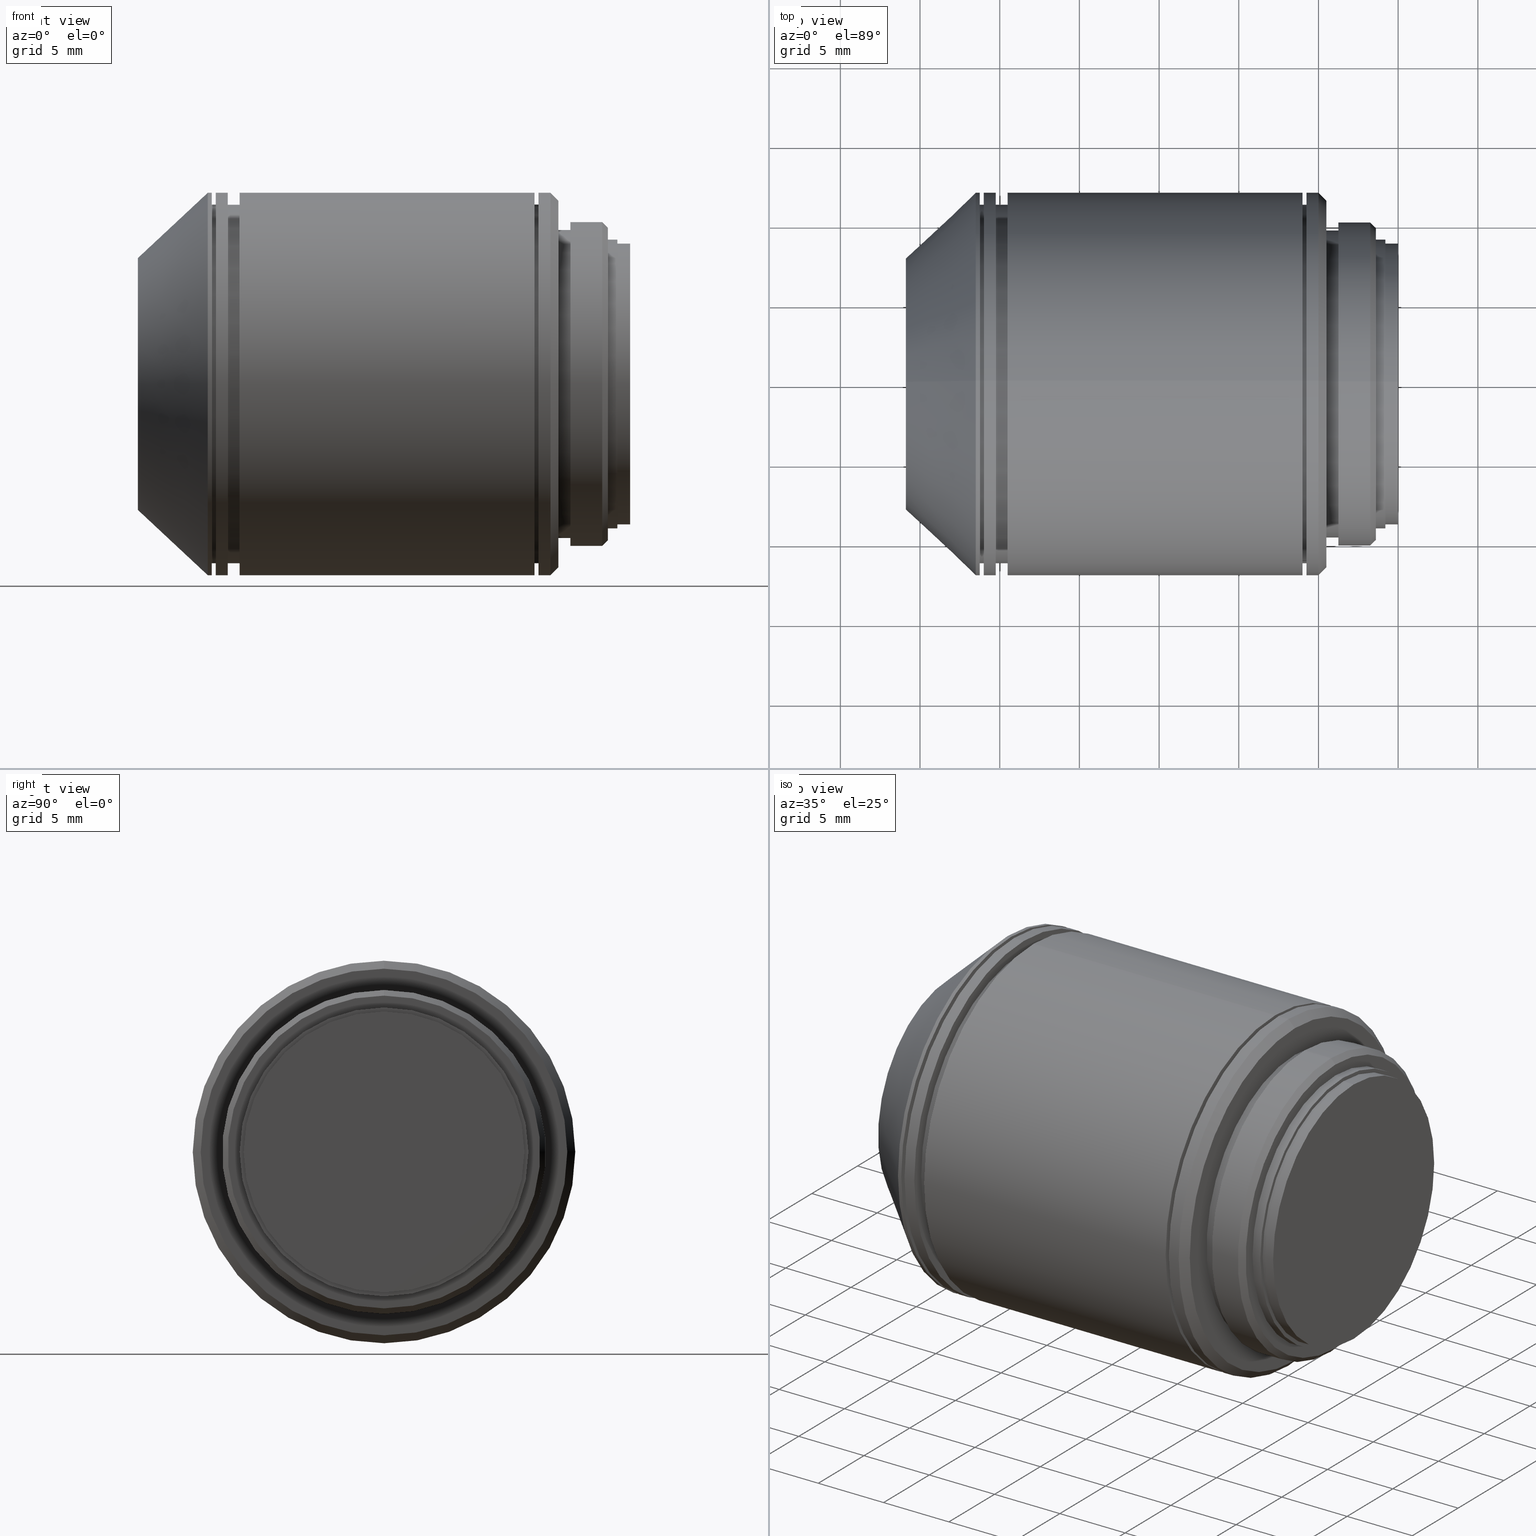
[diagram: canonical four-view strip — front | top / right | iso, engineering-drawing reading convention]
A machine part, canonical four-view strip (front | top / right | iso — engineering-drawing reading convention). The complete STEP part file that produces these views, byte-faithful:
ISO-10303-21;
HEADER;
FILE_DESCRIPTION (( 'STEP AP203' ),
    '1' );
FILE_NAME ('690062.step',
    '2025-04-14T08:43:41',
    ( 'MSI' ),
    ( '' ),
    'SwSTEP 2.0',
    'SolidWorks 2020',
    '' );
FILE_SCHEMA (( 'CONFIG_CONTROL_DESIGN' ));
ENDSEC;

DATA;
#1 = CARTESIAN_POINT ( 'NONE',  ( 35.11960189172815205, 0.000000000000000000, 0.000000000000000000 ) ) ;
#2 = ORIENTED_EDGE ( 'NONE', *, *, #337, .F. ) ;
#3 = LINE ( 'NONE', #177, #231 ) ;
#4 = VERTEX_POINT ( 'NONE', #911 ) ;
#5 = EDGE_CURVE ( 'NONE', #531, #794, #972, .T. ) ;
#6 = AXIS2_PLACEMENT_3D ( 'NONE', #924, #814, #827 ) ;
#7 = APPROVAL_DATE_TIME ( #613, #576 ) ;
#8 = CARTESIAN_POINT ( 'NONE',  ( -26.50000000000000000, 1.469576158976823947E-15, 12.00000000000000000 ) ) ;
#9 = EDGE_LOOP ( 'NONE', ( #921, #803 ) ) ;
#10 = DIRECTION ( 'NONE',  ( 1.000000000000000000, 0.000000000000000000, 0.000000000000000000 ) ) ;
#11 = ORIENTED_EDGE ( 'NONE', *, *, #1120, .F. ) ;
#12 = ADVANCED_FACE ( 'NONE', ( #404, #390 ), #737, .T. ) ;
#13 = DATE_AND_TIME ( #345, #362 ) ;
#14 = CYLINDRICAL_SURFACE ( 'NONE', #800, 8.810000000000000497 ) ;
#15 = VERTEX_POINT ( 'NONE', #915 ) ;
#16 = CYLINDRICAL_SURFACE ( 'NONE', #291, 11.25000000000000000 ) ;
#17 = ORIENTED_EDGE ( 'NONE', *, *, #509, .F. ) ;
#18 = CARTESIAN_POINT ( 'NONE',  ( -24.50000000000000000, 0.000000000000000000, 0.000000000000000000 ) ) ;
#19 = AXIS2_PLACEMENT_3D ( 'NONE', #164, #247, #599 ) ;
#20 = AXIS2_PLACEMENT_3D ( 'NONE', #99, #622, #449 ) ;
#21 = DATE_TIME_ROLE ( 'classification_date' ) ;
#22 = FACE_OUTER_BOUND ( 'NONE', #707, .T. ) ;
#23 = EDGE_CURVE ( 'NONE', #96, #388, #1085, .T. ) ;
#24 = ORIENTED_EDGE ( 'NONE', *, *, #945, .T. ) ;
#25 = CARTESIAN_POINT ( 'NONE',  ( 35.11960189172815205, 0.000000000000000000, -9.060000000000000497 ) ) ;
#26 = CIRCLE ( 'NONE', #235, 11.50000000000000000 ) ;
#27 = ORIENTED_EDGE ( 'NONE', *, *, #549, .T. ) ;
#28 = DIRECTION ( 'NONE',  ( 0.000000000000000000, 0.000000000000000000, -1.000000000000000000 ) ) ;
#29 = MECHANICAL_CONTEXT ( 'NONE', #712, 'mechanical' ) ;
#30 = DIRECTION ( 'NONE',  ( 1.000000000000000000, 0.000000000000000000, 0.000000000000000000 ) ) ;
#31 = ORIENTED_EDGE ( 'NONE', *, *, #945, .F. ) ;
#32 = DIRECTION ( 'NONE',  ( 1.000000000000000000, 0.000000000000000000, 0.000000000000000000 ) ) ;
#33 = ADVANCED_FACE ( 'NONE', ( #752 ), #77, .T. ) ;
#34 = ORIENTED_EDGE ( 'NONE', *, *, #1104, .F. ) ;
#35 = APPROVAL_DATE_TIME ( #466, #666 ) ;
#36 = DIRECTION ( 'NONE',  ( 0.000000000000000000, 0.000000000000000000, -1.000000000000000000 ) ) ;
#37 = ORIENTED_EDGE ( 'NONE', *, *, #524, .F. ) ;
#38 = CARTESIAN_POINT ( 'NONE',  ( -3.750000000000000000, 0.000000000000000000, -10.16000000000000014 ) ) ;
#39 = ORIENTED_EDGE ( 'NONE', *, *, #663, .F. ) ;
#40 = CARTESIAN_POINT ( 'NONE',  ( -26.25000000000000000, 0.000000000000000000, 0.000000000000000000 ) ) ;
#41 = CIRCLE ( 'NONE', #290, 9.660000000000000142 ) ;
#42 = EDGE_LOOP ( 'NONE', ( #881, #160, #783, #841 ) ) ;
#43 = CARTESIAN_POINT ( 'NONE',  ( 35.11960189172815205, 0.000000000000000000, 0.000000000000000000 ) ) ;
#44 = CIRCLE ( 'NONE', #965, 11.25000000000000000 ) ;
#45 = EDGE_LOOP ( 'NONE', ( #625, #790, #817, #950 ) ) ;
#46 = ADVANCED_FACE ( 'NONE', ( #1005 ), #1090, .T. ) ;
#47 = CARTESIAN_POINT ( 'NONE',  ( -4.500000000000000000, 0.000000000000000000, 0.000000000000000000 ) ) ;
#48 = VERTEX_POINT ( 'NONE', #205 ) ;
#49 = CYLINDRICAL_SURFACE ( 'NONE', #641, 12.00000000000000000 ) ;
#50 = DIRECTION ( 'NONE',  ( 1.000000000000000000, 0.000000000000000000, 0.000000000000000000 ) ) ;
#51 = ADVANCED_FACE ( 'NONE', ( #553 ), #729, .T. ) ;
#52 = DIRECTION ( 'NONE',  ( 1.000000000000000000, 0.000000000000000000, 0.000000000000000000 ) ) ;
#53 = FACE_OUTER_BOUND ( 'NONE', #453, .T. ) ;
#54 = ORIENTED_EDGE ( 'NONE', *, *, #753, .T. ) ;
#55 = DIRECTION ( 'NONE',  ( 0.000000000000000000, 0.000000000000000000, 1.000000000000000000 ) ) ;
#56 = EDGE_CURVE ( 'NONE', #83, #65, #742, .T. ) ;
#57 = ORIENTED_EDGE ( 'NONE', *, *, #78, .F. ) ;
#58 = CARTESIAN_POINT ( 'NONE',  ( -26.00000000000000000, 0.000000000000000000, 0.000000000000000000 ) ) ;
#59 = DIRECTION ( 'NONE',  ( 0.000000000000000000, 0.000000000000000000, -1.000000000000000000 ) ) ;
#60 = ADVANCED_FACE ( 'NONE', ( #398 ), #746, .T. ) ;
#61 = ORIENTED_EDGE ( 'NONE', *, *, #663, .T. ) ;
#62 = UNCERTAINTY_MEASURE_WITH_UNIT (LENGTH_MEASURE( 1.000000000000000082E-05 ), #682, 'distance_accuracy_value', 'NONE');
#63 = CARTESIAN_POINT ( 'NONE',  ( -3.750000000000000000, 9.660000000000000142, 0.000000000000000000 ) ) ;
#64 = LINE ( 'NONE', #497, #383 ) ;
#65 = VERTEX_POINT ( 'NONE', #1102 ) ;
#66 = FACE_BOUND ( 'NONE', #543, .T. ) ;
#67 = CARTESIAN_POINT ( 'NONE',  ( 0.000000000000000000, 0.000000000000000000, 0.000000000000000000 ) ) ;
#68 = DIRECTION ( 'NONE',  ( 1.000000000000000000, 0.000000000000000000, 0.000000000000000000 ) ) ;
#69 = AXIS2_PLACEMENT_3D ( 'NONE', #483, #395, #997 ) ;
#70 = ORIENTED_EDGE ( 'NONE', *, *, #222, .F. ) ;
#71 = AXIS2_PLACEMENT_3D ( 'NONE', #434, #611, #422 ) ;
#72 = AXIS2_PLACEMENT_3D ( 'NONE', #887, #999, #975 ) ;
#73 = EDGE_CURVE ( 'NONE', #65, #888, #719, .T. ) ;
#74 = DIRECTION ( 'NONE',  ( 0.000000000000000000, 0.000000000000000000, -1.000000000000000000 ) ) ;
#75 = DIRECTION ( 'NONE',  ( 0.000000000000000000, 0.000000000000000000, -1.000000000000000000 ) ) ;
#76 = ORIENTED_EDGE ( 'NONE', *, *, #190, .T. ) ;
#77 = CONICAL_SURFACE ( 'NONE', #148, 11.50000000000000000, 0.7853981633974320697 ) ;
#78 = EDGE_CURVE ( 'NONE', #336, #408, #1021, .T. ) ;
#79 = DIRECTION ( 'NONE',  ( 1.000000000000000000, 0.000000000000000000, 0.000000000000000000 ) ) ;
#80 = ORIENTED_EDGE ( 'NONE', *, *, #396, .F. ) ;
#81 = CARTESIAN_POINT ( 'NONE',  ( -5.750000000000000000, 11.25000000000000000, 0.000000000000000000 ) ) ;
#82 = CARTESIAN_POINT ( 'NONE',  ( -1.399999999999999911, 0.000000000000000000, -9.060000000000000497 ) ) ;
#83 = VERTEX_POINT ( 'NONE', #157 ) ;
#84 = ADVANCED_FACE ( 'NONE', ( #837 ), #327, .T. ) ;
#85 = ORIENTED_EDGE ( 'NONE', *, *, #281, .T. ) ;
#86 = CIRCLE ( 'NONE', #216, 12.00000000000000000 ) ;
#87 = CIRCLE ( 'NONE', #658, 9.660000000000000142 ) ;
#88 = CARTESIAN_POINT ( 'NONE',  ( -5.000000000000000000, 0.000000000000000000, -12.00000000000000000 ) ) ;
#89 = ORIENTED_EDGE ( 'NONE', *, *, #1100, .F. ) ;
#90 = DIRECTION ( 'NONE',  ( 0.000000000000000000, 0.000000000000000000, -1.000000000000000000 ) ) ;
#91 = ORIENTED_EDGE ( 'NONE', *, *, #168, .F. ) ;
#92 = EDGE_CURVE ( 'NONE', #620, #612, #106, .T. ) ;
#93 = FACE_OUTER_BOUND ( 'NONE', #1103, .T. ) ;
#94 = COORDINATED_UNIVERSAL_TIME_OFFSET ( 8, 0, .AHEAD. ) ;
#95 = DIRECTION ( 'NONE',  ( 1.000000000000000000, 0.000000000000000000, 0.000000000000000000 ) ) ;
#96 = VERTEX_POINT ( 'NONE', #1111 ) ;
#97 = FACE_OUTER_BOUND ( 'NONE', #905, .T. ) ;
#98 = VERTEX_POINT ( 'NONE', #768 ) ;
#99 = CARTESIAN_POINT ( 'NONE',  ( 35.11960189172815205, 0.000000000000000000, 0.000000000000000000 ) ) ;
#100 = APPROVAL_ROLE ( '' ) ;
#101 = CARTESIAN_POINT ( 'NONE',  ( -3.750000000000000000, 0.000000000000000000, 0.000000000000000000 ) ) ;
#102 = ORIENTED_EDGE ( 'NONE', *, *, #815, .T. ) ;
#103 = DIRECTION ( 'NONE',  ( 0.000000000000000000, 0.000000000000000000, -1.000000000000000000 ) ) ;
#104 = VERTEX_POINT ( 'NONE', #228 ) ;
#105 = CARTESIAN_POINT ( 'NONE',  ( 35.11960189172815205, 1.469576158976823947E-15, 12.00000000000000000 ) ) ;
#106 = CIRCLE ( 'NONE', #432, 7.900000000000000355 ) ;
#107 = AXIS2_PLACEMENT_3D ( 'NONE', #512, #427, #773 ) ;
#108 = AXIS2_PLACEMENT_3D ( 'NONE', #1008, #230, #741 ) ;
#109 = CARTESIAN_POINT ( 'NONE',  ( -24.50000000000000000, 0.000000000000000000, -11.25000000000000000 ) ) ;
#110 = EDGE_LOOP ( 'NONE', ( #475, #1088 ) ) ;
#111 = DIRECTION ( 'NONE',  ( 1.000000000000000000, 0.000000000000000000, 0.000000000000000000 ) ) ;
#112 = EDGE_LOOP ( 'NONE', ( #721, #781, #662, #656 ) ) ;
#113 = CARTESIAN_POINT ( 'NONE',  ( -26.50000000000000000, 0.000000000000000000, 0.000000000000000000 ) ) ;
#114 = APPROVAL_STATUS ( 'not_yet_approved' ) ;
#115 = CARTESIAN_POINT ( 'NONE',  ( -24.50000000000000000, 0.000000000000000000, -12.00000000000000000 ) ) ;
#116 = VERTEX_POINT ( 'NONE', #683 ) ;
#117 = DIRECTION ( 'NONE',  ( 1.000000000000000000, 0.000000000000000000, 0.000000000000000000 ) ) ;
#118 = VERTEX_POINT ( 'NONE', #674 ) ;
#119 = DIRECTION ( 'NONE',  ( 1.000000000000000000, 0.000000000000000000, 0.000000000000000000 ) ) ;
#120 = ORIENTED_EDGE ( 'NONE', *, *, #23, .T. ) ;
#121 = DIRECTION ( 'NONE',  ( 0.000000000000000000, 0.000000000000000000, -1.000000000000000000 ) ) ;
#122 = VERTEX_POINT ( 'NONE', #772 ) ;
#123 = ADVANCED_FACE ( 'NONE', ( #840 ), #456, .T. ) ;
#124 = AXIS2_PLACEMENT_3D ( 'NONE', #828, #739, #378 ) ;
#125 = LINE ( 'NONE', #824, #1038 ) ;
#126 = AXIS2_PLACEMENT_3D ( 'NONE', #113, #993, #28 ) ;
#127 = ORIENTED_EDGE ( 'NONE', *, *, #337, .T. ) ;
#128 = CARTESIAN_POINT ( 'NONE',  ( -26.00000000000000000, 0.000000000000000000, 0.000000000000000000 ) ) ;
#129 = AXIS2_PLACEMENT_3D ( 'NONE', #480, #654, #496 ) ;
#130 = ORIENTED_EDGE ( 'NONE', *, *, #577, .F. ) ;
#131 = EDGE_CURVE ( 'NONE', #118, #202, #333, .T. ) ;
#132 = DIRECTION ( 'NONE',  ( 1.000000000000000000, 0.000000000000000000, 0.000000000000000000 ) ) ;
#133 = ORIENTED_EDGE ( 'NONE', *, *, #486, .T. ) ;
#134 = DIRECTION ( 'NONE',  ( 1.000000000000000000, 0.000000000000000000, 0.000000000000000000 ) ) ;
#135 = VECTOR ( 'NONE', #575, 1000.000000000000000 ) ;
#136 = EDGE_LOOP ( 'NONE', ( #1053, #908 ) ) ;
#137 = ADVANCED_FACE ( 'NONE', ( #332 ), #757, .T. ) ;
#138 = CARTESIAN_POINT ( 'NONE',  ( -6.000000000000000000, 0.000000000000000000, 0.000000000000000000 ) ) ;
#139 = ORIENTED_EDGE ( 'NONE', *, *, #1120, .T. ) ;
#140 = ADVANCED_FACE ( 'NONE', ( #1020 ), #1094, .T. ) ;
#141 = AXIS2_PLACEMENT_3D ( 'NONE', #147, #238, #59 ) ;
#142 = DIRECTION ( 'NONE',  ( 1.000000000000000000, 0.000000000000000000, 0.000000000000000000 ) ) ;
#143 = AXIS2_PLACEMENT_3D ( 'NONE', #791, #732, #883 ) ;
#144 = DIRECTION ( 'NONE',  ( 0.000000000000000000, 0.000000000000000000, -1.000000000000000000 ) ) ;
#145 = CIRCLE ( 'NONE', #129, 8.810000000000000497 ) ;
#146 = CYLINDRICAL_SURFACE ( 'NONE', #1080, 12.00000000000000000 ) ;
#147 = CARTESIAN_POINT ( 'NONE',  ( 35.11960189172815205, 0.000000000000000000, 0.000000000000000000 ) ) ;
#148 = AXIS2_PLACEMENT_3D ( 'NONE', #485, #301, #1099 ) ;
#149 = ORIENTED_EDGE ( 'NONE', *, *, #797, .T. ) ;
#150 = DIRECTION ( 'NONE',  ( 0.000000000000000000, 1.000000000000000000, 0.000000000000000000 ) ) ;
#151 = DIRECTION ( 'NONE',  ( 0.000000000000000000, 0.000000000000000000, -1.000000000000000000 ) ) ;
#152 = CARTESIAN_POINT ( 'NONE',  ( 35.11960189172815205, 1.109530000027501965E-15, 9.060000000000000497 ) ) ;
#153 = DIRECTION ( 'NONE',  ( 1.000000000000000000, 0.000000000000000000, 0.000000000000000000 ) ) ;
#154 = EDGE_LOOP ( 'NONE', ( #428, #245, #433, #1078 ) ) ;
#155 = ADVANCED_FACE ( 'NONE', ( #411, #579 ), #927, .T. ) ;
#156 = LINE ( 'NONE', #510, #419 ) ;
#157 = CARTESIAN_POINT ( 'NONE',  ( -0.8000000000000000444, 1.078913830048819953E-15, 8.810000000000000497 ) ) ;
#158 = CYLINDRICAL_SURFACE ( 'NONE', #416, 9.660000000000000142 ) ;
#159 = CIRCLE ( 'NONE', #657, 12.00000000000000000 ) ;
#160 = ORIENTED_EDGE ( 'NONE', *, *, #890, .T. ) ;
#161 = EDGE_CURVE ( 'NONE', #770, #48, #64, .T. ) ;
#162 = AXIS2_PLACEMENT_3D ( 'NONE', #1125, #689, #1027 ) ;
#163 = DIRECTION ( 'NONE',  ( 1.000000000000000000, 0.000000000000000000, 0.000000000000000000 ) ) ;
#164 = CARTESIAN_POINT ( 'NONE',  ( -6.000000000000000000, 0.000000000000000000, 0.000000000000000000 ) ) ;
#165 = DIRECTION ( 'NONE',  ( 0.000000000000000000, 0.000000000000000000, -1.000000000000000000 ) ) ;
#166 = ORIENTED_EDGE ( 'NONE', *, *, #5, .F. ) ;
#167 = LINE ( 'NONE', #105, #988 ) ;
#168 = EDGE_CURVE ( 'NONE', #686, #440, #588, .T. ) ;
#169 = CYLINDRICAL_SURFACE ( 'NONE', #385, 8.810000000000000497 ) ;
#170 = DIRECTION ( 'NONE',  ( 1.000000000000000000, 0.000000000000000000, 0.000000000000000000 ) ) ;
#171 = CARTESIAN_POINT ( 'NONE',  ( -26.25000000000000000, 0.000000000000000000, 0.000000000000000000 ) ) ;
#172 = ORIENTED_EDGE ( 'NONE', *, *, #443, .T. ) ;
#173 = DIRECTION ( 'NONE',  ( 1.000000000000000000, 0.000000000000000000, 0.000000000000000000 ) ) ;
#174 = EDGE_CURVE ( 'NONE', #809, #372, #159, .T. ) ;
#175 = CYLINDRICAL_SURFACE ( 'NONE', #1122, 12.00000000000000000 ) ;
#176 = EDGE_LOOP ( 'NONE', ( #278, #675, #735, #256 ) ) ;
#177 = CARTESIAN_POINT ( 'NONE',  ( -1.399999999999999911, 0.000000000000000000, 9.809999999999998721 ) ) ;
#178 = EDGE_LOOP ( 'NONE', ( #715, #653, #321, #250 ) ) ;
#179 = VECTOR ( 'NONE', #900, 1000.000000000000000 ) ;
#180 = CIRCLE ( 'NONE', #870, 11.25000000000000000 ) ;
#181 = DIRECTION ( 'NONE',  ( 1.000000000000000000, 0.000000000000000000, 0.000000000000000000 ) ) ;
#182 = VERTEX_POINT ( 'NONE', #714 ) ;
#183 = CARTESIAN_POINT ( 'NONE',  ( -24.50000000000000000, 11.25000000000000000, 0.000000000000000000 ) ) ;
#184 = ORIENTED_EDGE ( 'NONE', *, *, #131, .F. ) ;
#185 = AXIS2_PLACEMENT_3D ( 'NONE', #215, #50, #394 ) ;
#186 = PLANE ( 'NONE',  #521 ) ;
#187 = ORIENTED_EDGE ( 'NONE', *, *, #977, .F. ) ;
#188 = DIRECTION ( 'NONE',  ( 1.000000000000000000, 0.000000000000000000, 0.000000000000000000 ) ) ;
#189 = ORIENTED_EDGE ( 'NONE', *, *, #655, .F. ) ;
#190 = EDGE_CURVE ( 'NONE', #561, #980, #863, .T. ) ;
#191 = COORDINATED_UNIVERSAL_TIME_OFFSET ( 8, 0, .AHEAD. ) ;
#192 = CARTESIAN_POINT ( 'NONE',  ( -6.000000000000000000, 0.000000000000000000, -12.00000000000000000 ) ) ;
#193 = ORIENTED_EDGE ( 'NONE', *, *, #524, .T. ) ;
#194 = LINE ( 'NONE', #1079, #748 ) ;
#195 = ORIENTED_EDGE ( 'NONE', *, *, #281, .F. ) ;
#196 = CIRCLE ( 'NONE', #306, 9.809999999999998721 ) ;
#197 = ADVANCED_FACE ( 'NONE', ( #954 ), #452, .T. ) ;
#198 = AXIS2_PLACEMENT_3D ( 'NONE', #1076, #201, #206 ) ;
#199 = VECTOR ( 'NONE', #869, 1000.000000000000114 ) ;
#200 = PERSON_AND_ORGANIZATION ( #554, #673 ) ;
#201 = DIRECTION ( 'NONE',  ( 1.000000000000000000, 0.000000000000000000, 0.000000000000000000 ) ) ;
#202 = VERTEX_POINT ( 'NONE', #192 ) ;
#203 = CYLINDRICAL_SURFACE ( 'NONE', #252, 11.25000000000000000 ) ;
#204 = CIRCLE ( 'NONE', #1124, 12.00000000000000000 ) ;
#205 = CARTESIAN_POINT ( 'NONE',  ( -5.750000000000000000, 1.377727649040771994E-15, 11.25000000000000000 ) ) ;
#206 = DIRECTION ( 'NONE',  ( 0.000000000000000000, 0.000000000000000000, -1.000000000000000000 ) ) ;
#207 = ADVANCED_FACE ( 'NONE', ( #793 ), #14, .T. ) ;
#208 = ORIENTED_EDGE ( 'NONE', *, *, #822, .T. ) ;
#209 = LINE ( 'NONE', #801, #850 ) ;
#210 = VERTEX_POINT ( 'NONE', #82 ) ;
#211 = DIRECTION ( 'NONE',  ( 1.000000000000000000, 0.000000000000000000, 0.000000000000000000 ) ) ;
#212 = ORIENTED_EDGE ( 'NONE', *, *, #237, .F. ) ;
#213 = DIRECTION ( 'NONE',  ( 0.000000000000000000, 1.000000000000000000, 0.000000000000000000 ) ) ;
#214 = ADVANCED_FACE ( 'NONE', ( #22 ), #175, .T. ) ;
#215 = CARTESIAN_POINT ( 'NONE',  ( 35.11960189172815205, 0.000000000000000000, 0.000000000000000000 ) ) ;
#216 = AXIS2_PLACEMENT_3D ( 'NONE', #615, #254, #966 ) ;
#217 = CARTESIAN_POINT ( 'NONE',  ( 35.11960189172815205, 1.377727649040771994E-15, 11.25000000000000000 ) ) ;
#218 = VERTEX_POINT ( 'NONE', #630 ) ;
#219 = CARTESIAN_POINT ( 'NONE',  ( 35.11960189172815205, 0.000000000000000000, 0.000000000000000000 ) ) ;
#220 = CIRCLE ( 'NONE', #361, 11.25000000000000000 ) ;
#221 = CARTESIAN_POINT ( 'NONE',  ( 35.11960189172815205, 1.377727649040771994E-15, 11.25000000000000000 ) ) ;
#222 = EDGE_CURVE ( 'NONE', #440, #116, #249, .T. ) ;
#223 = FACE_BOUND ( 'NONE', #110, .T. ) ;
#224 = CARTESIAN_POINT ( 'NONE',  ( -25.25000000000000000, 0.000000000000000000, 0.000000000000000000 ) ) ;
#225 = VERTEX_POINT ( 'NONE', #88 ) ;
#226 = EDGE_CURVE ( 'NONE', #262, #809, #624, .T. ) ;
#227 = LINE ( 'NONE', #578, #621 ) ;
#228 = CARTESIAN_POINT ( 'NONE',  ( -4.500000000000000000, 0.000000000000000000, 11.50000000000000000 ) ) ;
#229 = AXIS2_PLACEMENT_3D ( 'NONE', #67, #592, #948 ) ;
#230 = DIRECTION ( 'NONE',  ( -1.000000000000000000, 0.000000000000000000, 0.000000000000000000 ) ) ;
#231 = VECTOR ( 'NONE', #255, 999.9999999999998863 ) ;
#232 = CARTESIAN_POINT ( 'NONE',  ( -4.500000000000000000, 0.000000000000000000, 0.000000000000000000 ) ) ;
#233 = AXIS2_PLACEMENT_3D ( 'NONE', #904, #188, #121 ) ;
#234 = EDGE_LOOP ( 'NONE', ( #267, #436, #149, #184 ) ) ;
#235 = AXIS2_PLACEMENT_3D ( 'NONE', #857, #936, #151 ) ;
#236 = CARTESIAN_POINT ( 'NONE',  ( 35.11960189172815205, 0.000000000000000000, 0.000000000000000000 ) ) ;
#237 = EDGE_CURVE ( 'NONE', #886, #294, #196, .T. ) ;
#238 = DIRECTION ( 'NONE',  ( 1.000000000000000000, 0.000000000000000000, 0.000000000000000000 ) ) ;
#239 = VECTOR ( 'NONE', #830, 1000.000000000000000 ) ;
#240 = CARTESIAN_POINT ( 'NONE',  ( 35.11960189172815205, 0.000000000000000000, 0.000000000000000000 ) ) ;
#241 = VERTEX_POINT ( 'NONE', #979 ) ;
#242 = FACE_OUTER_BOUND ( 'NONE', #176, .T. ) ;
#243 = DIRECTION ( 'NONE',  ( 0.000000000000000000, 0.000000000000000000, -1.000000000000000000 ) ) ;
#244 = ADVANCED_FACE ( 'NONE', ( #516, #1042 ), #186, .T. ) ;
#245 = ORIENTED_EDGE ( 'NONE', *, *, #168, .T. ) ;
#246 = DIRECTION ( 'NONE',  ( 0.000000000000000000, 0.000000000000000000, -1.000000000000000000 ) ) ;
#247 = DIRECTION ( 'NONE',  ( 1.000000000000000000, 0.000000000000000000, 0.000000000000000000 ) ) ;
#248 = DIRECTION ( 'NONE',  ( 1.000000000000000000, 0.000000000000000000, 0.000000000000000000 ) ) ;
#249 = CIRCLE ( 'NONE', #580, 9.060000000000000497 ) ;
#250 = ORIENTED_EDGE ( 'NONE', *, *, #922, .F. ) ;
#251 = CIRCLE ( 'NONE', #505, 9.060000000000000497 ) ;
#252 = AXIS2_PLACEMENT_3D ( 'NONE', #552, #117, #447 ) ;
#253 = EDGE_CURVE ( 'NONE', #182, #241, #539, .T. ) ;
#254 = DIRECTION ( 'NONE',  ( 1.000000000000000000, 0.000000000000000000, 0.000000000000000000 ) ) ;
#255 = DIRECTION ( 'NONE',  ( -0.7071067811865560104, 0.000000000000000000, 0.7071067811865391350 ) ) ;
#256 = ORIENTED_EDGE ( 'NONE', *, *, #253, .F. ) ;
#257 = EDGE_CURVE ( 'NONE', #294, #886, #891, .T. ) ;
#258 = CARTESIAN_POINT ( 'NONE',  ( -4.500000000000000000, 1.183008807976341910E-15, 9.660000000000000142 ) ) ;
#259 = CARTESIAN_POINT ( 'NONE',  ( -1.399999999999999911, 0.000000000000000000, 0.000000000000000000 ) ) ;
#260 = ORIENTED_EDGE ( 'NONE', *, *, #797, .F. ) ;
#261 = LINE ( 'NONE', #864, #435 ) ;
#262 = VERTEX_POINT ( 'NONE', #431 ) ;
#263 = PERSON_AND_ORGANIZATION_ROLE ( 'design_supplier' ) ;
#264 = CARTESIAN_POINT ( 'NONE',  ( -26.00000000000000000, 0.000000000000000000, 0.000000000000000000 ) ) ;
#265 = ORIENTED_EDGE ( 'NONE', *, *, #131, .T. ) ;
#266 = FACE_OUTER_BOUND ( 'NONE', #503, .T. ) ;
#267 = ORIENTED_EDGE ( 'NONE', *, *, #822, .F. ) ;
#268 = AXIS2_PLACEMENT_3D ( 'NONE', #1091, #293, #907 ) ;
#269 = CIRCLE ( 'NONE', #802, 11.25000000000000000 ) ;
#270 = CIRCLE ( 'NONE', #162, 12.00000000000000000 ) ;
#271 = DIRECTION ( 'NONE',  ( 1.000000000000000000, 0.000000000000000000, 0.000000000000000000 ) ) ;
#272 = VERTEX_POINT ( 'NONE', #109 ) ;
#273 = DIRECTION ( 'NONE',  ( 0.000000000000000000, 0.000000000000000000, -1.000000000000000000 ) ) ;
#274 = EDGE_CURVE ( 'NONE', #104, #903, #871, .T. ) ;
#275 = ORIENTED_EDGE ( 'NONE', *, *, #549, .F. ) ;
#276 = PERSON_AND_ORGANIZATION_ROLE ( 'design_owner' ) ;
#277 = DIRECTION ( 'NONE',  ( 1.000000000000000000, 0.000000000000000000, 0.000000000000000000 ) ) ;
#278 = ORIENTED_EDGE ( 'NONE', *, *, #614, .T. ) ;
#279 = CARTESIAN_POINT ( 'NONE',  ( -1.399999999999999911, 1.109530000027501965E-15, 9.060000000000000497 ) ) ;
#280 = ORIENTED_EDGE ( 'NONE', *, *, #92, .F. ) ;
#281 = EDGE_CURVE ( 'NONE', #980, #518, #565, .T. ) ;
#282 = LINE ( 'NONE', #628, #179 ) ;
#283 = PERSON_AND_ORGANIZATION ( #554, #673 ) ;
#284 = FACE_OUTER_BOUND ( 'NONE', #944, .T. ) ;
#285 = VERTEX_POINT ( 'NONE', #8 ) ;
#286 = DIRECTION ( 'NONE',  ( 1.000000000000000000, 0.000000000000000000, 0.000000000000000000 ) ) ;
#287 = ORIENTED_EDGE ( 'NONE', *, *, #815, .F. ) ;
#288 = AXIS2_PLACEMENT_3D ( 'NONE', #935, #119, #36 ) ;
#289 = EDGE_CURVE ( 'NONE', #98, #241, #1075, .T. ) ;
#290 = AXIS2_PLACEMENT_3D ( 'NONE', #502, #68, #441 ) ;
#291 = AXIS2_PLACEMENT_3D ( 'NONE', #43, #356, #530 ) ;
#292 = DATE_AND_TIME ( #370, #750 ) ;
#293 = DIRECTION ( 'NONE',  ( 1.000000000000000000, 0.000000000000000000, 0.000000000000000000 ) ) ;
#294 = VERTEX_POINT ( 'NONE', #799 ) ;
#295 = PLANE ( 'NONE',  #849 ) ;
#296 = DIRECTION ( 'NONE',  ( 1.000000000000000000, 0.000000000000000000, 0.000000000000000000 ) ) ;
#297 = EDGE_CURVE ( 'NONE', #982, #325, #86, .T. ) ;
#298 = CARTESIAN_POINT ( 'NONE',  ( -26.50000000000000000, 0.000000000000000000, 0.000000000000000000 ) ) ;
#299 = EDGE_LOOP ( 'NONE', ( #1083, #31 ) ) ;
#300 = CARTESIAN_POINT ( 'NONE',  ( -6.000000000000000000, 12.00000000000000000, 0.000000000000000000 ) ) ;
#301 = DIRECTION ( 'NONE',  ( -1.000000000000000000, 0.000000000000000000, 0.000000000000000000 ) ) ;
#302 = DIRECTION ( 'NONE',  ( 0.000000000000000000, 0.000000000000000000, -1.000000000000000000 ) ) ;
#303 = ORIENTED_EDGE ( 'NONE', *, *, #984, .T. ) ;
#304 = DIRECTION ( 'NONE',  ( 0.000000000000000000, 0.000000000000000000, -1.000000000000000000 ) ) ;
#305 = CARTESIAN_POINT ( 'NONE',  ( 35.11960189172815205, 1.078913830048819953E-15, 8.810000000000000497 ) ) ;
#306 = AXIS2_PLACEMENT_3D ( 'NONE', #259, #170, #973 ) ;
#307 = DIRECTION ( 'NONE',  ( 1.000000000000000000, 0.000000000000000000, 0.000000000000000000 ) ) ;
#308 = CIRCLE ( 'NONE', #545, 7.900000000000000355 ) ;
#309 = CARTESIAN_POINT ( 'NONE',  ( -25.25000000000000000, 0.000000000000000000, 0.000000000000000000 ) ) ;
#310 = CONICAL_SURFACE ( 'NONE', #458, 12.00000000000000000, 0.7512536059970944535 ) ;
#311 = DIRECTION ( 'NONE',  ( 1.000000000000000000, 0.000000000000000000, 0.000000000000000000 ) ) ;
#312 = EDGE_CURVE ( 'NONE', #1026, #561, #776, .T. ) ;
#313 = FACE_OUTER_BOUND ( 'NONE', #989, .T. ) ;
#314 = ORIENTED_EDGE ( 'NONE', *, *, #92, .T. ) ;
#315 = DIRECTION ( 'NONE',  ( 1.000000000000000000, 0.000000000000000000, 0.000000000000000000 ) ) ;
#316 = ORIENTED_EDGE ( 'NONE', *, *, #274, .F. ) ;
#317 = EDGE_CURVE ( 'NONE', #116, #440, #318, .T. ) ;
#318 = CIRCLE ( 'NONE', #288, 9.060000000000000497 ) ;
#319 = DIRECTION ( 'NONE',  ( 0.000000000000000000, 0.000000000000000000, -1.000000000000000000 ) ) ;
#320 = CIRCLE ( 'NONE', #730, 11.50000000000000000 ) ;
#321 = ORIENTED_EDGE ( 'NONE', *, *, #564, .F. ) ;
#322 = ADVANCED_FACE ( 'NONE', ( #1070, #223 ), #573, .T. ) ;
#323 = FACE_OUTER_BOUND ( 'NONE', #473, .T. ) ;
#324 = DIRECTION ( 'NONE',  ( 1.000000000000000000, 0.000000000000000000, 0.000000000000000000 ) ) ;
#325 = VERTEX_POINT ( 'NONE', #472 ) ;
#326 = CARTESIAN_POINT ( 'NONE',  ( -1.399999999999999911, 9.809999999999998721, 0.000000000000000000 ) ) ;
#327 = CYLINDRICAL_SURFACE ( 'NONE', #141, 10.16000000000000014 ) ;
#328 = LINE ( 'NONE', #684, #544 ) ;
#329 = ADVANCED_FACE ( 'NONE', ( #660 ), #1082, .T. ) ;
#330 = ORIENTED_EDGE ( 'NONE', *, *, #402, .T. ) ;
#331 =( NAMED_UNIT ( * ) PLANE_ANGLE_UNIT ( ) SI_UNIT ( $, .RADIAN. ) );
#332 = FACE_OUTER_BOUND ( 'NONE', #462, .T. ) ;
#333 = CIRCLE ( 'NONE', #19, 12.00000000000000000 ) ;
#334 = CARTESIAN_POINT ( 'NONE',  ( -4.500000000000000000, 0.000000000000000000, -9.660000000000000142 ) ) ;
#335 = CIRCLE ( 'NONE', #143, 12.00000000000000000 ) ;
#336 = VERTEX_POINT ( 'NONE', #635 ) ;
#337 = EDGE_CURVE ( 'NONE', #794, #531, #962, .T. ) ;
#338 = AXIS2_PLACEMENT_3D ( 'NONE', #762, #410, #515 ) ;
#339 = FACE_OUTER_BOUND ( 'NONE', #644, .T. ) ;
#340 = DIRECTION ( 'NONE',  ( 0.000000000000000000, 0.000000000000000000, 1.000000000000000000 ) ) ;
#341 = ORIENTED_EDGE ( 'NONE', *, *, #461, .T. ) ;
#342 = DIRECTION ( 'NONE',  ( 1.000000000000000000, 0.000000000000000000, 0.000000000000000000 ) ) ;
#343 = ORIENTED_EDGE ( 'NONE', *, *, #190, .F. ) ;
#344 = CC_DESIGN_PERSON_AND_ORGANIZATION_ASSIGNMENT ( #538, #1074, ( #1041 ) ) ;
#345 = CALENDAR_DATE ( 2025, 14, 4 ) ;
#346 = CARTESIAN_POINT ( 'NONE',  ( 35.11960189172815205, 0.000000000000000000, 0.000000000000000000 ) ) ;
#347 = ORIENTED_EDGE ( 'NONE', *, *, #222, .T. ) ;
#348 = DIRECTION ( 'NONE',  ( 0.000000000000000000, 1.000000000000000000, 0.000000000000000000 ) ) ;
#349 = APPLICATION_CONTEXT ( 'configuration controlled 3d designs of mechanical parts and assemblies' ) ;
#350 = ORIENTED_EDGE ( 'NONE', *, *, #409, .F. ) ;
#351 = CYLINDRICAL_SURFACE ( 'NONE', #20, 12.00000000000000000 ) ;
#352 = EDGE_CURVE ( 'NONE', #372, #809, #414, .T. ) ;
#353 = PERSON_AND_ORGANIZATION ( #554, #673 ) ;
#354 = DIRECTION ( 'NONE',  ( 1.000000000000000000, 0.000000000000000000, 0.000000000000000000 ) ) ;
#355 = ORIENTED_EDGE ( 'NONE', *, *, #461, .F. ) ;
#356 = DIRECTION ( 'NONE',  ( 1.000000000000000000, 0.000000000000000000, 0.000000000000000000 ) ) ;
#357 = EDGE_LOOP ( 'NONE', ( #193, #755, #130, #669 ) ) ;
#358 = CONICAL_SURFACE ( 'NONE', #1009, 9.809999999999998721, 0.7853981633974362886 ) ;
#359 = CIRCLE ( 'NONE', #1011, 10.16000000000000014 ) ;
#360 = DIRECTION ( 'NONE',  ( 1.000000000000000000, 0.000000000000000000, 0.000000000000000000 ) ) ;
#361 = AXIS2_PLACEMENT_3D ( 'NONE', #1013, #667, #923 ) ;
#362 = LOCAL_TIME ( 16, 43, 41.00000000000000000, #996 ) ;
#363 = APPROVAL_ROLE ( '' ) ;
#364 = ADVANCED_FACE ( 'NONE', ( #284 ), #358, .T. ) ;
#365 = DIRECTION ( 'NONE',  ( 0.000000000000000000, 0.000000000000000000, -1.000000000000000000 ) ) ;
#366 = EDGE_LOOP ( 'NONE', ( #940, #563 ) ) ;
#367 = FACE_OUTER_BOUND ( 'NONE', #112, .T. ) ;
#368 = ORIENTED_EDGE ( 'NONE', *, *, #700, .T. ) ;
#369 = AXIS2_PLACEMENT_3D ( 'NONE', #1095, #311, #144 ) ;
#370 = CALENDAR_DATE ( 2025, 14, 4 ) ;
#371 = CYLINDRICAL_SURFACE ( 'NONE', #490, 10.16000000000000014 ) ;
#372 = VERTEX_POINT ( 'NONE', #816 ) ;
#373 = CARTESIAN_POINT ( 'NONE',  ( -4.500000000000000000, 1.438959988998139963E-15, -11.50000000000000000 ) ) ;
#374 = ORIENTED_EDGE ( 'NONE', *, *, #862, .T. ) ;
#375 = ADVANCED_FACE ( 'NONE', ( #467 ), #371, .T. ) ;
#376 = CARTESIAN_POINT ( 'NONE',  ( -6.000000000000000000, 0.000000000000000000, 0.000000000000000000 ) ) ;
#377 = CALENDAR_DATE ( 2025, 14, 4 ) ;
#378 = DIRECTION ( 'NONE',  ( 0.000000000000000000, 0.000000000000000000, -1.000000000000000000 ) ) ;
#379 = ORIENTED_EDGE ( 'NONE', *, *, #678, .F. ) ;
#380 = CARTESIAN_POINT ( 'NONE',  ( -1.399999999999999911, 0.000000000000000000, 0.000000000000000000 ) ) ;
#381 = ORIENTED_EDGE ( 'NONE', *, *, #1023, .F. ) ;
#382 = EDGE_CURVE ( 'NONE', #285, #372, #125, .T. ) ;
#383 = VECTOR ( 'NONE', #679, 1000.000000000000000 ) ;
#384 = AXIS2_PLACEMENT_3D ( 'NONE', #18, #360, #546 ) ;
#385 = AXIS2_PLACEMENT_3D ( 'NONE', #957, #424, #246 ) ;
#386 = APPROVAL_PERSON_ORGANIZATION ( #884, #576, #363 ) ;
#387 = DIRECTION ( 'NONE',  ( 1.000000000000000000, 0.000000000000000000, 0.000000000000000000 ) ) ;
#388 = VERTEX_POINT ( 'NONE', #987 ) ;
#389 = CARTESIAN_POINT ( 'NONE',  ( 35.11960189172815205, 0.000000000000000000, 0.000000000000000000 ) ) ;
#390 = FACE_BOUND ( 'NONE', #974, .T. ) ;
#391 = DIRECTION ( 'NONE',  ( 1.000000000000000000, 0.000000000000000000, 0.000000000000000000 ) ) ;
#392 = EDGE_LOOP ( 'NONE', ( #2, #166 ) ) ;
#393 = DIRECTION ( 'NONE',  ( 1.000000000000000000, 0.000000000000000000, 0.000000000000000000 ) ) ;
#394 = DIRECTION ( 'NONE',  ( 0.000000000000000000, 0.000000000000000000, -1.000000000000000000 ) ) ;
#395 = DIRECTION ( 'NONE',  ( 1.000000000000000000, 0.000000000000000000, 0.000000000000000000 ) ) ;
#396 = EDGE_CURVE ( 'NONE', #740, #122, #760, .T. ) ;
#397 = FACE_OUTER_BOUND ( 'NONE', #551, .T. ) ;
#398 = FACE_OUTER_BOUND ( 'NONE', #559, .T. ) ;
#399 = AXIS2_PLACEMENT_3D ( 'NONE', #101, #30, #460 ) ;
#400 = VECTOR ( 'NONE', #697, 1000.000000000000000 ) ;
#401 = DIRECTION ( 'NONE',  ( 0.000000000000000000, 0.000000000000000000, -1.000000000000000000 ) ) ;
#402 = EDGE_CURVE ( 'NONE', #686, #210, #581, .T. ) ;
#403 = VECTOR ( 'NONE', #618, 1000.000000000000000 ) ;
#404 = FACE_OUTER_BOUND ( 'NONE', #464, .T. ) ;
#405 = AXIS2_PLACEMENT_3D ( 'NONE', #978, #1057, #985 ) ;
#406 = PRODUCT ( '690062', '690062', '', ( #29 ) ) ;
#407 = CARTESIAN_POINT ( 'NONE',  ( -6.000000000000000000, 0.000000000000000000, -11.25000000000000000 ) ) ;
#408 = VERTEX_POINT ( 'NONE', #115 ) ;
#409 = EDGE_CURVE ( 'NONE', #15, #182, #1108, .T. ) ;
#410 = DIRECTION ( 'NONE',  ( 1.000000000000000000, 0.000000000000000000, 0.000000000000000000 ) ) ;
#411 = FACE_OUTER_BOUND ( 'NONE', #508, .T. ) ;
#412 = ORIENTED_EDGE ( 'NONE', *, *, #753, .F. ) ;
#413 = EDGE_CURVE ( 'NONE', #285, #262, #777, .T. ) ;
#414 = CIRCLE ( 'NONE', #69, 12.00000000000000000 ) ;
#415 = LINE ( 'NONE', #1031, #199 ) ;
#416 = AXIS2_PLACEMENT_3D ( 'NONE', #769, #153, #593 ) ;
#417 = DIRECTION ( 'NONE',  ( 0.000000000000000000, 0.000000000000000000, 1.000000000000000000 ) ) ;
#418 = CARTESIAN_POINT ( 'NONE',  ( -30.89000000000000057, 0.000000000000000000, -7.900000000000000355 ) ) ;
#419 = VECTOR ( 'NONE', #587, 1000.000000000000000 ) ;
#420 = ORIENTED_EDGE ( 'NONE', *, *, #482, .T. ) ;
#421 = LINE ( 'NONE', #771, #761 ) ;
#422 = DIRECTION ( 'NONE',  ( 0.000000000000000000, 0.000000000000000000, -1.000000000000000000 ) ) ;
#423 = ORIENTED_EDGE ( 'NONE', *, *, #174, .T. ) ;
#424 = DIRECTION ( 'NONE',  ( 1.000000000000000000, 0.000000000000000000, 0.000000000000000000 ) ) ;
#425 = EDGE_CURVE ( 'NONE', #518, #980, #87, .T. ) ;
#426 = DIRECTION ( 'NONE',  ( 0.000000000000000000, 0.000000000000000000, -1.000000000000000000 ) ) ;
#427 = DIRECTION ( 'NONE',  ( 1.000000000000000000, 0.000000000000000000, 0.000000000000000000 ) ) ;
#428 = ORIENTED_EDGE ( 'NONE', *, *, #724, .T. ) ;
#429 = DIRECTION ( 'NONE',  ( 1.000000000000000000, 0.000000000000000000, 0.000000000000000000 ) ) ;
#430 = FACE_OUTER_BOUND ( 'NONE', #42, .T. ) ;
#431 = CARTESIAN_POINT ( 'NONE',  ( -26.50000000000000000, 0.000000000000000000, -12.00000000000000000 ) ) ;
#432 = AXIS2_PLACEMENT_3D ( 'NONE', #1028, #845, #426 ) ;
#433 = ORIENTED_EDGE ( 'NONE', *, *, #317, .F. ) ;
#434 = CARTESIAN_POINT ( 'NONE',  ( -5.750000000000000000, 0.000000000000000000, 0.000000000000000000 ) ) ;
#435 = VECTOR ( 'NONE', #79, 1000.000000000000000 ) ;
#436 = ORIENTED_EDGE ( 'NONE', *, *, #78, .T. ) ;
#437 = CIRCLE ( 'NONE', #671, 12.00000000000000000 ) ;
#438 = CALENDAR_DATE ( 2025, 14, 4 ) ;
#439 = CARTESIAN_POINT ( 'NONE',  ( 35.11960189172815205, 0.000000000000000000, -12.00000000000000000 ) ) ;
#440 = VERTEX_POINT ( 'NONE', #912 ) ;
#441 = DIRECTION ( 'NONE',  ( 0.000000000000000000, 0.000000000000000000, -1.000000000000000000 ) ) ;
#442 = ORIENTED_EDGE ( 'NONE', *, *, #73, .F. ) ;
#443 = EDGE_CURVE ( 'NONE', #766, #104, #320, .T. ) ;
#444 = DATE_TIME_ROLE ( 'creation_date' ) ;
#445 = DIRECTION ( 'NONE',  ( 0.000000000000000000, 0.000000000000000000, -1.000000000000000000 ) ) ;
#446 = ORIENTED_EDGE ( 'NONE', *, *, #733, .T. ) ;
#447 = DIRECTION ( 'NONE',  ( 0.000000000000000000, 0.000000000000000000, -1.000000000000000000 ) ) ;
#448 = VERTEX_POINT ( 'NONE', #652 ) ;
#449 = DIRECTION ( 'NONE',  ( 0.000000000000000000, 0.000000000000000000, -1.000000000000000000 ) ) ;
#450 = EDGE_CURVE ( 'NONE', #15, #98, #1006, .T. ) ;
#451 = DATE_AND_TIME ( #377, #493 ) ;
#452 = CYLINDRICAL_SURFACE ( 'NONE', #638, 9.060000000000000497 ) ;
#453 = EDGE_LOOP ( 'NONE', ( #455, #280 ) ) ;
#454 = LINE ( 'NONE', #25, #930 ) ;
#455 = ORIENTED_EDGE ( 'NONE', *, *, #604, .F. ) ;
#456 = CONICAL_SURFACE ( 'NONE', #867, 9.809999999999998721, 0.7853981633974362886 ) ;
#457 = CIRCLE ( 'NONE', #640, 12.00000000000000000 ) ;
#458 = AXIS2_PLACEMENT_3D ( 'NONE', #558, #895, #103 ) ;
#459 = CC_DESIGN_DATE_AND_TIME_ASSIGNMENT ( #13, #21, ( #1041 ) ) ;
#460 = DIRECTION ( 'NONE',  ( 0.000000000000000000, 0.000000000000000000, -1.000000000000000000 ) ) ;
#461 = EDGE_CURVE ( 'NONE', #83, #499, #525, .T. ) ;
#462 = EDGE_LOOP ( 'NONE', ( #91, #330, #651, #70 ) ) ;
#463 = DIRECTION ( 'NONE',  ( 0.000000000000000000, 0.000000000000000000, -1.000000000000000000 ) ) ;
#464 = EDGE_LOOP ( 'NONE', ( #423, #1060 ) ) ;
#465 = CARTESIAN_POINT ( 'NONE',  ( -3.750000000000000000, 1.183008807976344079E-15, 9.660000000000000142 ) ) ;
#466 = DATE_AND_TIME ( #713, #835 ) ;
#467 = FACE_OUTER_BOUND ( 'NONE', #1030, .T. ) ;
#468 = ORIENTED_EDGE ( 'NONE', *, *, #932, .F. ) ;
#469 = FACE_OUTER_BOUND ( 'NONE', #392, .T. ) ;
#470 = EDGE_CURVE ( 'NONE', #807, #903, #167, .T. ) ;
#471 = CARTESIAN_POINT ( 'NONE',  ( -26.25000000000000000, 12.00000000000000000, 0.000000000000000000 ) ) ;
#472 = CARTESIAN_POINT ( 'NONE',  ( -25.25000000000000000, 0.000000000000000000, -12.00000000000000000 ) ) ;
#473 = EDGE_LOOP ( 'NONE', ( #1107, #586, #468, #39 ) ) ;
#474 = LINE ( 'NONE', #1071, #403 ) ;
#475 = ORIENTED_EDGE ( 'NONE', *, *, #607, .F. ) ;
#476 = AXIS2_PLACEMENT_3D ( 'NONE', #1012, #556, #1086 ) ;
#477 = LOCAL_TIME ( 16, 43, 41.00000000000000000, #785 ) ;
#478 = DIRECTION ( 'NONE',  ( 1.000000000000000000, 0.000000000000000000, 0.000000000000000000 ) ) ;
#479 = EDGE_LOOP ( 'NONE', ( #27, #208, #412, #260 ) ) ;
#480 = CARTESIAN_POINT ( 'NONE',  ( 0.000000000000000000, 0.000000000000000000, 0.000000000000000000 ) ) ;
#481 = DIRECTION ( 'NONE',  ( 0.000000000000000000, 0.000000000000000000, -1.000000000000000000 ) ) ;
#482 = EDGE_CURVE ( 'NONE', #4, #272, #282, .T. ) ;
#483 = CARTESIAN_POINT ( 'NONE',  ( -26.25000000000000000, 0.000000000000000000, 0.000000000000000000 ) ) ;
#484 = CARTESIAN_POINT ( 'NONE',  ( -1.399999999999999911, 0.000000000000000000, 9.809999999999998721 ) ) ;
#485 = CARTESIAN_POINT ( 'NONE',  ( -4.500000000000000000, 0.000000000000000000, 0.000000000000000000 ) ) ;
#486 = EDGE_CURVE ( 'NONE', #807, #218, #335, .T. ) ;
#487 = FACE_OUTER_BOUND ( 'NONE', #1034, .T. ) ;
#488 = ORIENTED_EDGE ( 'NONE', *, *, #396, .T. ) ;
#489 = AXIS2_PLACEMENT_3D ( 'NONE', #232, #585, #1017 ) ;
#490 = AXIS2_PLACEMENT_3D ( 'NONE', #743, #132, #720 ) ;
#491 = VECTOR ( 'NONE', #286, 1000.000000000000000 ) ;
#492 = DIRECTION ( 'NONE',  ( 1.000000000000000000, 0.000000000000000000, 0.000000000000000000 ) ) ;
#493 = LOCAL_TIME ( 16, 43, 41.00000000000000000, #533 ) ;
#494 = EDGE_CURVE ( 'NONE', #325, #982, #896, .T. ) ;
#495 = DIRECTION ( 'NONE',  ( 1.000000000000000000, 0.000000000000000000, 0.000000000000000000 ) ) ;
#496 = DIRECTION ( 'NONE',  ( 0.000000000000000000, 0.000000000000000000, -1.000000000000000000 ) ) ;
#497 = CARTESIAN_POINT ( 'NONE',  ( 35.11960189172815205, 1.377727649040771994E-15, 11.25000000000000000 ) ) ;
#498 = ADVANCED_FACE ( 'NONE', ( #93 ), #351, .T. ) ;
#499 = VERTEX_POINT ( 'NONE', #983 ) ;
#500 = CARTESIAN_POINT ( 'NONE',  ( -4.500000000000000000, 11.50000000000000000, 0.000000000000000000 ) ) ;
#501 = CARTESIAN_POINT ( 'NONE',  ( 35.11960189172815205, 0.000000000000000000, -11.25000000000000000 ) ) ;
#502 = CARTESIAN_POINT ( 'NONE',  ( -4.500000000000000000, 0.000000000000000000, 0.000000000000000000 ) ) ;
#503 = EDGE_LOOP ( 'NONE', ( #529, #314, #649, #1063 ) ) ;
#504 = DIRECTION ( 'NONE',  ( 1.000000000000000000, 0.000000000000000000, 0.000000000000000000 ) ) ;
#505 = AXIS2_PLACEMENT_3D ( 'NONE', #380, #728, #273 ) ;
#506 = DIRECTION ( 'NONE',  ( 1.000000000000000000, 0.000000000000000000, 0.000000000000000000 ) ) ;
#507 = CIRCLE ( 'NONE', #659, 11.25000000000000000 ) ;
#508 = EDGE_LOOP ( 'NONE', ( #646, #347 ) ) ;
#509 = EDGE_CURVE ( 'NONE', #272, #388, #598, .T. ) ;
#510 = CARTESIAN_POINT ( 'NONE',  ( 35.11960189172815205, 0.000000000000000000, -12.00000000000000000 ) ) ;
#511 = CARTESIAN_POINT ( 'NONE',  ( 35.11960189172815205, 0.000000000000000000, 0.000000000000000000 ) ) ;
#512 = CARTESIAN_POINT ( 'NONE',  ( 35.11960189172815205, 0.000000000000000000, 0.000000000000000000 ) ) ;
#513 = EDGE_LOOP ( 'NONE', ( #703, #172 ) ) ;
#514 = ADVANCED_FACE ( 'NONE', ( #889 ), #963, .T. ) ;
#515 = DIRECTION ( 'NONE',  ( 0.000000000000000000, 0.000000000000000000, -1.000000000000000000 ) ) ;
#516 = FACE_OUTER_BOUND ( 'NONE', #796, .T. ) ;
#517 = CARTESIAN_POINT ( 'NONE',  ( -30.89000000000000057, 1.218523565151615986E-15, 7.900000000000000355 ) ) ;
#518 = VERTEX_POINT ( 'NONE', #465 ) ;
#519 = PLANE ( 'NONE',  #779 ) ;
#520 = DIRECTION ( 'NONE',  ( 1.000000000000000000, 0.000000000000000000, 0.000000000000000000 ) ) ;
#521 = AXIS2_PLACEMENT_3D ( 'NONE', #534, #1052, #340 ) ;
#522 = ORIENTED_EDGE ( 'NONE', *, *, #577, .T. ) ;
#523 = DIRECTION ( 'NONE',  ( 1.000000000000000000, 0.000000000000000000, 0.000000000000000000 ) ) ;
#524 = EDGE_CURVE ( 'NONE', #876, #770, #269, .T. ) ;
#525 = CIRCLE ( 'NONE', #834, 8.810000000000000497 ) ;
#526 = ORIENTED_EDGE ( 'NONE', *, *, #564, .T. ) ;
#527 = CIRCLE ( 'NONE', #917, 12.00000000000000000 ) ;
#528 = CARTESIAN_POINT ( 'NONE',  ( 35.11960189172815205, 0.000000000000000000, 0.000000000000000000 ) ) ;
#529 = ORIENTED_EDGE ( 'NONE', *, *, #1035, .F. ) ;
#530 = DIRECTION ( 'NONE',  ( 0.000000000000000000, 0.000000000000000000, -1.000000000000000000 ) ) ;
#531 = VERTEX_POINT ( 'NONE', #938 ) ;
#532 = CC_DESIGN_DATE_AND_TIME_ASSIGNMENT ( #292, #444, ( #571 ) ) ;
#533 = COORDINATED_UNIVERSAL_TIME_OFFSET ( 8, 0, .AHEAD. ) ;
#534 = CARTESIAN_POINT ( 'NONE',  ( -26.00000000000000000, 11.25000000000000000, 0.000000000000000000 ) ) ;
#535 = DIRECTION ( 'NONE',  ( 1.000000000000000000, 0.000000000000000000, 0.000000000000000000 ) ) ;
#536 = EDGE_LOOP ( 'NONE', ( #1049, #570 ) ) ;
#537 = ADVANCED_FACE ( 'NONE', ( #960, #692 ), #680, .T. ) ;
#538 = PERSON_AND_ORGANIZATION ( #554, #673 ) ;
#539 = LINE ( 'NONE', #892, #400 ) ;
#540 = ORIENTED_EDGE ( 'NONE', *, *, #443, .F. ) ;
#541 = FACE_OUTER_BOUND ( 'NONE', #1000, .T. ) ;
#542 = VECTOR ( 'NONE', #787, 1000.000000000000114 ) ;
#543 = EDGE_LOOP ( 'NONE', ( #522, #606 ) ) ;
#544 = VECTOR ( 'NONE', #342, 1000.000000000000000 ) ;
#545 = AXIS2_PLACEMENT_3D ( 'NONE', #846, #506, #859 ) ;
#546 = DIRECTION ( 'NONE',  ( 0.000000000000000000, 0.000000000000000000, -1.000000000000000000 ) ) ;
#547 = CIRCLE ( 'NONE', #693, 8.810000000000000497 ) ;
#548 = CC_DESIGN_APPROVAL ( #576, ( #1041 ) ) ;
#549 = EDGE_CURVE ( 'NONE', #408, #336, #670, .T. ) ;
#550 = CARTESIAN_POINT ( 'NONE',  ( -3.750000000000000000, 0.000000000000000000, 0.000000000000000000 ) ) ;
#551 = EDGE_LOOP ( 'NONE', ( #54, #265 ) ) ;
#552 = CARTESIAN_POINT ( 'NONE',  ( 35.11960189172815205, 0.000000000000000000, 0.000000000000000000 ) ) ;
#553 = FACE_OUTER_BOUND ( 'NONE', #568, .T. ) ;
#554 = PERSON ( 'δָ��', 'δָ��', 'δָ��', ('δָ��'), ('δָ��'), ('δָ��') ) ;
#555 = DIRECTION ( 'NONE',  ( 1.000000000000000000, 0.000000000000000000, 0.000000000000000000 ) ) ;
#556 = DIRECTION ( 'NONE',  ( 1.000000000000000000, 0.000000000000000000, 0.000000000000000000 ) ) ;
#557 = EDGE_LOOP ( 'NONE', ( #540, #374, #139, #316 ) ) ;
#558 = CARTESIAN_POINT ( 'NONE',  ( -26.50000000000000000, 0.000000000000000000, 0.000000000000000000 ) ) ;
#559 = EDGE_LOOP ( 'NONE', ( #961, #617, #195, #343 ) ) ;
#560 = DIRECTION ( 'NONE',  ( 0.000000000000000000, 0.000000000000000000, -1.000000000000000000 ) ) ;
#561 = VERTEX_POINT ( 'NONE', #334 ) ;
#562 = DIRECTION ( 'NONE',  ( 0.000000000000000000, 0.000000000000000000, -1.000000000000000000 ) ) ;
#563 = ORIENTED_EDGE ( 'NONE', *, *, #73, .T. ) ;
#564 = EDGE_CURVE ( 'NONE', #262, #285, #457, .T. ) ;
#565 = CIRCLE ( 'NONE', #399, 9.660000000000000142 ) ;
#566 = AXIS2_PLACEMENT_3D ( 'NONE', #1029, #873, #1119 ) ;
#567 = DIRECTION ( 'NONE',  ( 1.000000000000000000, 0.000000000000000000, 0.000000000000000000 ) ) ;
#568 = EDGE_LOOP ( 'NONE', ( #590, #636, #11, #287 ) ) ;
#569 = CARTESIAN_POINT ( 'NONE',  ( 35.11960189172815205, 0.000000000000000000, 0.000000000000000000 ) ) ;
#570 = ORIENTED_EDGE ( 'NONE', *, *, #1069, .T. ) ;
#571 = PRODUCT_DEFINITION ( 'δ֪', '', #852, #634 ) ;
#572 = AXIS2_PLACEMENT_3D ( 'NONE', #1081, #820, #481 ) ;
#573 = PLANE ( 'NONE',  #928 ) ;
#574 = CARTESIAN_POINT ( 'NONE',  ( 35.11960189172815205, 0.000000000000000000, 0.000000000000000000 ) ) ;
#575 = DIRECTION ( 'NONE',  ( 1.000000000000000000, 0.000000000000000000, 0.000000000000000000 ) ) ;
#576 = APPROVAL ( #705, 'δָ��' ) ;
#577 = EDGE_CURVE ( 'NONE', #1072, #48, #916, .T. ) ;
#578 = CARTESIAN_POINT ( 'NONE',  ( -26.50000000000000000, 0.000000000000000000, -12.00000000000000000 ) ) ;
#579 = FACE_BOUND ( 'NONE', #833, .T. ) ;
#580 = AXIS2_PLACEMENT_3D ( 'NONE', #702, #95, #1059 ) ;
#581 = CIRCLE ( 'NONE', #476, 9.060000000000000497 ) ;
#582 = ADVANCED_FACE ( 'NONE', ( #943 ), #158, .T. ) ;
#583 = AXIS2_PLACEMENT_3D ( 'NONE', #63, #1019, #55 ) ;
#584 = DIRECTION ( 'NONE',  ( -0.7071067811865584529, 8.659560562354793575E-17, -0.7071067811865365815 ) ) ;
#585 = DIRECTION ( 'NONE',  ( -1.000000000000000000, 0.000000000000000000, 0.000000000000000000 ) ) ;
#586 = ORIENTED_EDGE ( 'NONE', *, *, #56, .T. ) ;
#587 = DIRECTION ( 'NONE',  ( 1.000000000000000000, 0.000000000000000000, 0.000000000000000000 ) ) ;
#588 = LINE ( 'NONE', #152, #687 ) ;
#589 = DIRECTION ( 'NONE',  ( 0.000000000000000000, 0.000000000000000000, -1.000000000000000000 ) ) ;
#590 = ORIENTED_EDGE ( 'NONE', *, *, #1023, .T. ) ;
#591 = CYLINDRICAL_SURFACE ( 'NONE', #804, 11.25000000000000000 ) ;
#592 = DIRECTION ( 'NONE',  ( 1.000000000000000000, 0.000000000000000000, 0.000000000000000000 ) ) ;
#593 = DIRECTION ( 'NONE',  ( 0.000000000000000000, 0.000000000000000000, -1.000000000000000000 ) ) ;
#594 = ORIENTED_EDGE ( 'NONE', *, *, #312, .T. ) ;
#595 = EDGE_CURVE ( 'NONE', #886, #740, #3, .T. ) ;
#596 = AXIS2_PLACEMENT_3D ( 'NONE', #1118, #764, #942 ) ;
#597 = FACE_BOUND ( 'NONE', #627, .T. ) ;
#598 = CIRCLE ( 'NONE', #384, 11.25000000000000000 ) ;
#599 = DIRECTION ( 'NONE',  ( 0.000000000000000000, 0.000000000000000000, -1.000000000000000000 ) ) ;
#600 = FACE_OUTER_BOUND ( 'NONE', #1116, .T. ) ;
#601 = VECTOR ( 'NONE', #584, 1000.000000000000114 ) ;
#602 = VERTEX_POINT ( 'NONE', #1043 ) ;
#603 = CC_DESIGN_SECURITY_CLASSIFICATION ( #1041, ( #852 ) ) ;
#604 = EDGE_CURVE ( 'NONE', #612, #620, #308, .T. ) ;
#605 = CARTESIAN_POINT ( 'NONE',  ( 35.11960189172815205, 0.000000000000000000, -9.660000000000000142 ) ) ;
#606 = ORIENTED_EDGE ( 'NONE', *, *, #655, .T. ) ;
#607 = EDGE_CURVE ( 'NONE', #561, #1026, #41, .T. ) ;
#608 = CYLINDRICAL_SURFACE ( 'NONE', #338, 12.00000000000000000 ) ;
#609 = DIRECTION ( 'NONE',  ( 1.000000000000000000, 0.000000000000000000, 0.000000000000000000 ) ) ;
#610 = EDGE_LOOP ( 'NONE', ( #1014, #727, #639, #80 ) ) ;
#611 = DIRECTION ( 'NONE',  ( 1.000000000000000000, 0.000000000000000000, 0.000000000000000000 ) ) ;
#612 = VERTEX_POINT ( 'NONE', #418 ) ;
#613 = DATE_AND_TIME ( #438, #477 ) ;
#614 = EDGE_CURVE ( 'NONE', #182, #15, #929, .T. ) ;
#615 = CARTESIAN_POINT ( 'NONE',  ( -25.25000000000000000, 0.000000000000000000, 0.000000000000000000 ) ) ;
#616 = AXIS2_PLACEMENT_3D ( 'NONE', #511, #858, #937 ) ;
#617 = ORIENTED_EDGE ( 'NONE', *, *, #1018, .T. ) ;
#618 = DIRECTION ( 'NONE',  ( 1.000000000000000000, 0.000000000000000000, 0.000000000000000000 ) ) ;
#619 = AXIS2_PLACEMENT_3D ( 'NONE', #298, #478, #647 ) ;
#620 = VERTEX_POINT ( 'NONE', #517 ) ;
#621 = VECTOR ( 'NONE', #829, 1000.000000000000114 ) ;
#622 = DIRECTION ( 'NONE',  ( 1.000000000000000000, 0.000000000000000000, 0.000000000000000000 ) ) ;
#623 = PERSON_AND_ORGANIZATION ( #554, #673 ) ;
#624 = LINE ( 'NONE', #439, #893 ) ;
#625 = ORIENTED_EDGE ( 'NONE', *, *, #257, .F. ) ;
#626 = CARTESIAN_POINT ( 'NONE',  ( 35.11960189172815205, 0.000000000000000000, -12.00000000000000000 ) ) ;
#627 = EDGE_LOOP ( 'NONE', ( #1047, #998 ) ) ;
#628 = CARTESIAN_POINT ( 'NONE',  ( 35.11960189172815205, 0.000000000000000000, -11.25000000000000000 ) ) ;
#629 = PERSON_AND_ORGANIZATION_ROLE ( 'creator' ) ;
#630 = CARTESIAN_POINT ( 'NONE',  ( -5.750000000000000000, 0.000000000000000000, -12.00000000000000000 ) ) ;
#631 = DIRECTION ( 'NONE',  ( 1.000000000000000000, 0.000000000000000000, 0.000000000000000000 ) ) ;
#632 = ORIENTED_EDGE ( 'NONE', *, *, #226, .F. ) ;
#633 = ADVANCED_FACE ( 'NONE', ( #765 ), #789, .T. ) ;
#634 = DESIGN_CONTEXT ( 'detailed design', #349, 'design' ) ;
#635 = CARTESIAN_POINT ( 'NONE',  ( -24.50000000000000000, 1.469576158976823947E-15, 12.00000000000000000 ) ) ;
#636 = ORIENTED_EDGE ( 'NONE', *, *, #470, .T. ) ;
#637 = DIRECTION ( 'NONE',  ( 0.000000000000000000, 0.000000000000000000, -1.000000000000000000 ) ) ;
#638 = AXIS2_PLACEMENT_3D ( 'NONE', #346, #806, #445 ) ;
#639 = ORIENTED_EDGE ( 'NONE', *, *, #678, .T. ) ;
#640 = AXIS2_PLACEMENT_3D ( 'NONE', #698, #1115, #243 ) ;
#641 = AXIS2_PLACEMENT_3D ( 'NONE', #574, #826, #1098 ) ;
#642 = DIRECTION ( 'NONE',  ( 1.000000000000000000, 0.000000000000000000, 0.000000000000000000 ) ) ;
#643 = DIRECTION ( 'NONE',  ( 1.000000000000000000, 0.000000000000000000, 0.000000000000000000 ) ) ;
#644 = EDGE_LOOP ( 'NONE', ( #1007, #847 ) ) ;
#645 = DIRECTION ( 'NONE',  ( 0.000000000000000000, 0.000000000000000000, 1.000000000000000000 ) ) ;
#646 = ORIENTED_EDGE ( 'NONE', *, *, #317, .T. ) ;
#647 = DIRECTION ( 'NONE',  ( 0.000000000000000000, 0.000000000000000000, -1.000000000000000000 ) ) ;
#648 = EDGE_CURVE ( 'NONE', #531, #740, #261, .T. ) ;
#649 = ORIENTED_EDGE ( 'NONE', *, *, #922, .T. ) ;
#650 = DIRECTION ( 'NONE',  ( 1.000000000000000000, 0.000000000000000000, 0.000000000000000000 ) ) ;
#651 = ORIENTED_EDGE ( 'NONE', *, *, #805, .T. ) ;
#652 = CARTESIAN_POINT ( 'NONE',  ( -26.00000000000000000, 1.469576158976823947E-15, 12.00000000000000000 ) ) ;
#653 = ORIENTED_EDGE ( 'NONE', *, *, #1035, .T. ) ;
#654 = DIRECTION ( 'NONE',  ( 1.000000000000000000, 0.000000000000000000, 0.000000000000000000 ) ) ;
#655 = EDGE_CURVE ( 'NONE', #48, #1072, #1077, .T. ) ;
#656 = ORIENTED_EDGE ( 'NONE', *, *, #289, .F. ) ;
#657 = AXIS2_PLACEMENT_3D ( 'NONE', #958, #181, #365 ) ;
#658 = AXIS2_PLACEMENT_3D ( 'NONE', #1002, #211, #560 ) ;
#659 = AXIS2_PLACEMENT_3D ( 'NONE', #138, #134, #836 ) ;
#660 = FACE_OUTER_BOUND ( 'NONE', #357, .T. ) ;
#661 = DIRECTION ( 'NONE',  ( 0.000000000000000000, 0.000000000000000000, -1.000000000000000000 ) ) ;
#662 = ORIENTED_EDGE ( 'NONE', *, *, #253, .T. ) ;
#663 = EDGE_CURVE ( 'NONE', #499, #888, #328, .T. ) ;
#664 = DIRECTION ( 'NONE',  ( 0.000000000000000000, 0.000000000000000000, -1.000000000000000000 ) ) ;
#665 = DIRECTION ( 'NONE',  ( 0.000000000000000000, 1.000000000000000000, 0.000000000000000000 ) ) ;
#666 = APPROVAL ( #114, 'δָ��' ) ;
#667 = DIRECTION ( 'NONE',  ( 1.000000000000000000, 0.000000000000000000, 0.000000000000000000 ) ) ;
#668 = DIRECTION ( 'NONE',  ( -1.000000000000000000, 0.000000000000000000, 0.000000000000000000 ) ) ;
#669 = ORIENTED_EDGE ( 'NONE', *, *, #1114, .F. ) ;
#670 = CIRCLE ( 'NONE', #566, 12.00000000000000000 ) ;
#671 = AXIS2_PLACEMENT_3D ( 'NONE', #128, #393, #664 ) ;
#672 = CARTESIAN_POINT ( 'NONE',  ( -5.750000000000000000, 0.000000000000000000, -11.25000000000000000 ) ) ;
#673 = ORGANIZATION ( 'δָ��', 'δָ��', '' ) ;
#674 = CARTESIAN_POINT ( 'NONE',  ( -6.000000000000000000, 1.469576158976823947E-15, 12.00000000000000000 ) ) ;
#675 = ORIENTED_EDGE ( 'NONE', *, *, #450, .T. ) ;
#676 = CLOSED_SHELL ( 'NONE', ( #1058, #197, #123, #375, #60, #33, #51, #329, #925, #969, #882, #1093, #498, #514, #910, #774, #685, #12, #745, #244, #1050, #537, #831, #695, #633, #951, #759, #1015, #214, #140, #322, #582, #842, #84, #364, #1087, #137, #155, #207, #46 ) ) ;
#677 = DIRECTION ( 'NONE',  ( 0.000000000000000000, 0.000000000000000000, -1.000000000000000000 ) ) ;
#678 = EDGE_CURVE ( 'NONE', #794, #122, #1048, .T. ) ;
#679 = DIRECTION ( 'NONE',  ( 1.000000000000000000, 0.000000000000000000, 0.000000000000000000 ) ) ;
#680 = PLANE ( 'NONE',  #821 ) ;
#681 = ORIENTED_EDGE ( 'NONE', *, *, #274, .T. ) ;
#682 =( LENGTH_UNIT ( ) NAMED_UNIT ( * ) SI_UNIT ( .MILLI., .METRE. ) );
#683 = CARTESIAN_POINT ( 'NONE',  ( -0.8000000000000000444, 0.000000000000000000, -9.060000000000000497 ) ) ;
#684 = CARTESIAN_POINT ( 'NONE',  ( 35.11960189172815205, 0.000000000000000000, -8.810000000000000497 ) ) ;
#685 = ADVANCED_FACE ( 'NONE', ( #600 ), #949, .T. ) ;
#686 = VERTEX_POINT ( 'NONE', #279 ) ;
#687 = VECTOR ( 'NONE', #324, 1000.000000000000000 ) ;
#688 = AXIS2_PLACEMENT_3D ( 'NONE', #40, #387, #734 ) ;
#689 = DIRECTION ( 'NONE',  ( 1.000000000000000000, 0.000000000000000000, 0.000000000000000000 ) ) ;
#690 = AXIS2_PLACEMENT_3D ( 'NONE', #224, #1089, #304 ) ;
#691 = DIRECTION ( 'NONE',  ( 0.000000000000000000, 0.000000000000000000, -1.000000000000000000 ) ) ;
#692 = FACE_BOUND ( 'NONE', #299, .T. ) ;
#693 = AXIS2_PLACEMENT_3D ( 'NONE', #839, #315, #931 ) ;
#694 = EDGE_LOOP ( 'NONE', ( #1003, #992, #1113, #189 ) ) ;
#695 = ADVANCED_FACE ( 'NONE', ( #541, #808 ), #295, .T. ) ;
#696 = DIRECTION ( 'NONE',  ( 1.000000000000000000, 0.000000000000000000, 0.000000000000000000 ) ) ;
#697 = DIRECTION ( 'NONE',  ( 1.000000000000000000, 0.000000000000000000, 0.000000000000000000 ) ) ;
#698 = CARTESIAN_POINT ( 'NONE',  ( -26.50000000000000000, 0.000000000000000000, 0.000000000000000000 ) ) ;
#699 = ORIENTED_EDGE ( 'NONE', *, *, #413, .T. ) ;
#700 = EDGE_CURVE ( 'NONE', #448, #982, #194, .T. ) ;
#701 = APPROVAL_ROLE ( '' ) ;
#702 = CARTESIAN_POINT ( 'NONE',  ( -0.8000000000000000444, 0.000000000000000000, 0.000000000000000000 ) ) ;
#703 = ORIENTED_EDGE ( 'NONE', *, *, #1104, .T. ) ;
#704 = ORIENTED_EDGE ( 'NONE', *, *, #382, .F. ) ;
#705 = APPROVAL_STATUS ( 'not_yet_approved' ) ;
#706 = DIRECTION ( 'NONE',  ( 0.000000000000000000, 0.000000000000000000, -1.000000000000000000 ) ) ;
#707 = EDGE_LOOP ( 'NONE', ( #879, #133, #102, #812 ) ) ;
#708 = CARTESIAN_POINT ( 'NONE',  ( -1.750000000000000000, 1.244241147933709878E-15, 10.16000000000000014 ) ) ;
#709 = VECTOR ( 'NONE', #248, 1000.000000000000000 ) ;
#710 = EDGE_LOOP ( 'NONE', ( #37, #187 ) ) ;
#711 = VECTOR ( 'NONE', #535, 1000.000000000000000 ) ;
#712 = APPLICATION_CONTEXT ( 'configuration controlled 3d designs of mechanical parts and assemblies' ) ;
#713 = CALENDAR_DATE ( 2025, 14, 4 ) ;
#714 = CARTESIAN_POINT ( 'NONE',  ( -26.25000000000000000, 0.000000000000000000, -11.25000000000000000 ) ) ;
#715 = ORIENTED_EDGE ( 'NONE', *, *, #604, .T. ) ;
#716 = DIRECTION ( 'NONE',  ( 1.000000000000000000, 0.000000000000000000, 0.000000000000000000 ) ) ;
#717 = EDGE_CURVE ( 'NONE', #122, #740, #359, .T. ) ;
#718 = ORIENTED_EDGE ( 'NONE', *, *, #1018, .F. ) ;
#719 = CIRCLE ( 'NONE', #229, 8.810000000000000497 ) ;
#720 = DIRECTION ( 'NONE',  ( 0.000000000000000000, 0.000000000000000000, -1.000000000000000000 ) ) ;
#721 = ORIENTED_EDGE ( 'NONE', *, *, #450, .F. ) ;
#722 = CARTESIAN_POINT ( 'NONE',  ( -26.25000000000000000, 0.000000000000000000, -12.00000000000000000 ) ) ;
#723 = ORIENTED_EDGE ( 'NONE', *, *, #767, .F. ) ;
#724 = EDGE_CURVE ( 'NONE', #210, #686, #251, .T. ) ;
#725 = SECURITY_CLASSIFICATION_LEVEL ( 'unclassified' ) ;
#726 = CARTESIAN_POINT ( 'NONE',  ( -1.399999999999999911, 0.000000000000000000, 0.000000000000000000 ) ) ;
#727 = ORIENTED_EDGE ( 'NONE', *, *, #5, .T. ) ;
#728 = DIRECTION ( 'NONE',  ( 1.000000000000000000, 0.000000000000000000, 0.000000000000000000 ) ) ;
#729 = CYLINDRICAL_SURFACE ( 'NONE', #185, 12.00000000000000000 ) ;
#730 = AXIS2_PLACEMENT_3D ( 'NONE', #47, #391, #302 ) ;
#731 = CIRCLE ( 'NONE', #72, 12.00000000000000000 ) ;
#732 = DIRECTION ( 'NONE',  ( 1.000000000000000000, 0.000000000000000000, 0.000000000000000000 ) ) ;
#733 = EDGE_CURVE ( 'NONE', #903, #225, #1039, .T. ) ;
#734 = DIRECTION ( 'NONE',  ( 0.000000000000000000, 0.000000000000000000, -1.000000000000000000 ) ) ;
#735 = ORIENTED_EDGE ( 'NONE', *, *, #939, .F. ) ;
#736 = FACE_BOUND ( 'NONE', #710, .T. ) ;
#737 = PLANE ( 'NONE',  #786 ) ;
#738 = CC_DESIGN_PERSON_AND_ORGANIZATION_ASSIGNMENT ( #200, #877, ( #571 ) ) ;
#739 = DIRECTION ( 'NONE',  ( 1.000000000000000000, 0.000000000000000000, 0.000000000000000000 ) ) ;
#740 = VERTEX_POINT ( 'NONE', #708 ) ;
#741 = DIRECTION ( 'NONE',  ( 0.000000000000000000, 0.000000000000000000, 1.000000000000000000 ) ) ;
#742 = LINE ( 'NONE', #305, #239 ) ;
#743 = CARTESIAN_POINT ( 'NONE',  ( 35.11960189172815205, 0.000000000000000000, 0.000000000000000000 ) ) ;
#744 = CARTESIAN_POINT ( 'NONE',  ( -3.750000000000000000, 0.000000000000000000, -9.660000000000000142 ) ) ;
#745 = ADVANCED_FACE ( 'NONE', ( #367 ), #16, .T. ) ;
#746 = CYLINDRICAL_SURFACE ( 'NONE', #369, 9.660000000000000142 ) ;
#747 = AXIS2_PLACEMENT_3D ( 'NONE', #1025, #495, #933 ) ;
#748 = VECTOR ( 'NONE', #111, 1000.000000000000000 ) ;
#749 = AXIS2_PLACEMENT_3D ( 'NONE', #219, #492, #562 ) ;
#750 = LOCAL_TIME ( 16, 43, 41.00000000000000000, #191 ) ;
#751 = CARTESIAN_POINT ( 'NONE',  ( -4.500000000000000000, 1.408343819019455979E-15, -11.50000000000000000 ) ) ;
#752 = FACE_OUTER_BOUND ( 'NONE', #557, .T. ) ;
#753 = EDGE_CURVE ( 'NONE', #202, #118, #731, .T. ) ;
#754 = DIRECTION ( 'NONE',  ( 1.000000000000000000, 0.000000000000000000, 0.000000000000000000 ) ) ;
#755 = ORIENTED_EDGE ( 'NONE', *, *, #161, .T. ) ;
#756 = DIRECTION ( 'NONE',  ( -1.000000000000000000, 0.000000000000000000, 0.000000000000000000 ) ) ;
#757 = CYLINDRICAL_SURFACE ( 'NONE', #616, 9.060000000000000497 ) ;
#758 = ORIENTED_EDGE ( 'NONE', *, *, #382, .T. ) ;
#759 = ADVANCED_FACE ( 'NONE', ( #968 ), #1067, .T. ) ;
#760 = CIRCLE ( 'NONE', #198, 10.16000000000000014 ) ;
#761 = VECTOR ( 'NONE', #1045, 1000.000000000000000 ) ;
#762 = CARTESIAN_POINT ( 'NONE',  ( 35.11960189172815205, 0.000000000000000000, 0.000000000000000000 ) ) ;
#763 = CC_DESIGN_APPROVAL ( #995, ( #852 ) ) ;
#764 = DIRECTION ( 'NONE',  ( 1.000000000000000000, 0.000000000000000000, 0.000000000000000000 ) ) ;
#765 = FACE_OUTER_BOUND ( 'NONE', #234, .T. ) ;
#766 = VERTEX_POINT ( 'NONE', #373 ) ;
#767 = EDGE_CURVE ( 'NONE', #294, #122, #209, .T. ) ;
#768 = CARTESIAN_POINT ( 'NONE',  ( -26.00000000000000000, 1.377727649040771994E-15, 11.25000000000000000 ) ) ;
#769 = CARTESIAN_POINT ( 'NONE',  ( 35.11960189172815205, 0.000000000000000000, 0.000000000000000000 ) ) ;
#770 = VERTEX_POINT ( 'NONE', #1054 ) ;
#771 = CARTESIAN_POINT ( 'NONE',  ( 35.11960189172815205, 1.183008807976341910E-15, 9.660000000000000142 ) ) ;
#772 = CARTESIAN_POINT ( 'NONE',  ( -1.750000000000000000, 0.000000000000000000, -10.16000000000000014 ) ) ;
#773 = DIRECTION ( 'NONE',  ( 0.000000000000000000, 0.000000000000000000, -1.000000000000000000 ) ) ;
#774 = ADVANCED_FACE ( 'NONE', ( #266 ), #310, .T. ) ;
#775 = ORIENTED_EDGE ( 'NONE', *, *, #482, .F. ) ;
#776 = CIRCLE ( 'NONE', #268, 9.660000000000000142 ) ;
#777 = CIRCLE ( 'NONE', #619, 12.00000000000000000 ) ;
#778 = DIRECTION ( 'NONE',  ( 0.000000000000000000, 0.000000000000000000, 1.000000000000000000 ) ) ;
#779 = AXIS2_PLACEMENT_3D ( 'NONE', #81, #756, #778 ) ;
#780 = DIRECTION ( 'NONE',  ( 1.000000000000000000, 0.000000000000000000, 0.000000000000000000 ) ) ;
#781 = ORIENTED_EDGE ( 'NONE', *, *, #409, .T. ) ;
#782 = DIRECTION ( 'NONE',  ( 1.000000000000000000, 0.000000000000000000, 0.000000000000000000 ) ) ;
#783 = ORIENTED_EDGE ( 'NONE', *, *, #1100, .T. ) ;
#784 = CC_DESIGN_PERSON_AND_ORGANIZATION_ASSIGNMENT ( #283, #629, ( #852 ) ) ;
#785 = COORDINATED_UNIVERSAL_TIME_OFFSET ( 8, 0, .AHEAD. ) ;
#786 = AXIS2_PLACEMENT_3D ( 'NONE', #471, #296, #665 ) ;
#787 = DIRECTION ( 'NONE',  ( -0.7071067811865584529, 0.000000000000000000, 0.7071067811865365815 ) ) ;
#788 = ORIENTED_EDGE ( 'NONE', *, *, #862, .F. ) ;
#789 = CYLINDRICAL_SURFACE ( 'NONE', #1037, 12.00000000000000000 ) ;
#790 = ORIENTED_EDGE ( 'NONE', *, *, #767, .T. ) ;
#791 = CARTESIAN_POINT ( 'NONE',  ( -5.750000000000000000, 0.000000000000000000, 0.000000000000000000 ) ) ;
#792 = PERSON_AND_ORGANIZATION ( #554, #673 ) ;
#793 = FACE_OUTER_BOUND ( 'NONE', #967, .T. ) ;
#794 = VERTEX_POINT ( 'NONE', #38 ) ;
#795 = FACE_BOUND ( 'NONE', #897, .T. ) ;
#796 = EDGE_LOOP ( 'NONE', ( #1022, #1044 ) ) ;
#797 = EDGE_CURVE ( 'NONE', #408, #202, #1061, .T. ) ;
#798 = APPLICATION_PROTOCOL_DEFINITION ( 'international standard', 'config_control_design', 1994, #712 ) ;
#799 = CARTESIAN_POINT ( 'NONE',  ( -1.399999999999999911, 1.222809828948632095E-15, -9.809999999999998721 ) ) ;
#800 = AXIS2_PLACEMENT_3D ( 'NONE', #1, #354, #1065 ) ;
#801 = CARTESIAN_POINT ( 'NONE',  ( -1.399999999999999911, 1.201378509963553918E-15, -9.809999999999998721 ) ) ;
#802 = AXIS2_PLACEMENT_3D ( 'NONE', #376, #429, #90 ) ;
#803 = ORIENTED_EDGE ( 'NONE', *, *, #289, .T. ) ;
#804 = AXIS2_PLACEMENT_3D ( 'NONE', #236, #1105, #319 ) ;
#805 = EDGE_CURVE ( 'NONE', #210, #116, #454, .T. ) ;
#806 = DIRECTION ( 'NONE',  ( 1.000000000000000000, 0.000000000000000000, 0.000000000000000000 ) ) ;
#807 = VERTEX_POINT ( 'NONE', #813 ) ;
#808 = FACE_BOUND ( 'NONE', #536, .T. ) ;
#809 = VERTEX_POINT ( 'NONE', #722 ) ;
#810 = APPROVAL_DATE_TIME ( #451, #995 ) ;
#811 = DIRECTION ( 'NONE',  ( 0.000000000000000000, 0.000000000000000000, 1.000000000000000000 ) ) ;
#812 = ORIENTED_EDGE ( 'NONE', *, *, #733, .F. ) ;
#813 = CARTESIAN_POINT ( 'NONE',  ( -5.750000000000000000, 1.469576158976823947E-15, 12.00000000000000000 ) ) ;
#814 = DIRECTION ( 'NONE',  ( 1.000000000000000000, 0.000000000000000000, 0.000000000000000000 ) ) ;
#815 = EDGE_CURVE ( 'NONE', #218, #225, #474, .T. ) ;
#816 = CARTESIAN_POINT ( 'NONE',  ( -26.25000000000000000, 1.469576158976823947E-15, 12.00000000000000000 ) ) ;
#817 = ORIENTED_EDGE ( 'NONE', *, *, #717, .T. ) ;
#818 = LINE ( 'NONE', #990, #491 ) ;
#819 = AXIS2_PLACEMENT_3D ( 'NONE', #878, #609, #1046 ) ;
#820 = DIRECTION ( 'NONE',  ( 1.000000000000000000, 0.000000000000000000, 0.000000000000000000 ) ) ;
#821 = AXIS2_PLACEMENT_3D ( 'NONE', #955, #782, #348 ) ;
#822 = EDGE_CURVE ( 'NONE', #336, #118, #818, .T. ) ;
#823 = AXIS2_PLACEMENT_3D ( 'NONE', #326, #696, #1040 ) ;
#824 = CARTESIAN_POINT ( 'NONE',  ( 35.11960189172815205, 1.469576158976823947E-15, 12.00000000000000000 ) ) ;
#825 = ORIENTED_EDGE ( 'NONE', *, *, #425, .F. ) ;
#826 = DIRECTION ( 'NONE',  ( 1.000000000000000000, 0.000000000000000000, 0.000000000000000000 ) ) ;
#827 = DIRECTION ( 'NONE',  ( 0.000000000000000000, 1.000000000000000000, 0.000000000000000000 ) ) ;
#828 = CARTESIAN_POINT ( 'NONE',  ( 35.11960189172815205, 0.000000000000000000, 0.000000000000000000 ) ) ;
#829 = DIRECTION ( 'NONE',  ( 0.7308337877255219883, 0.000000000000000000, -0.6825554737299868169 ) ) ;
#830 = DIRECTION ( 'NONE',  ( 1.000000000000000000, 0.000000000000000000, 0.000000000000000000 ) ) ;
#831 = ADVANCED_FACE ( 'NONE', ( #97 ), #203, .T. ) ;
#832 = CYLINDRICAL_SURFACE ( 'NONE', #749, 11.25000000000000000 ) ;
#833 = EDGE_LOOP ( 'NONE', ( #860, #355 ) ) ;
#834 = AXIS2_PLACEMENT_3D ( 'NONE', #918, #855, #1117 ) ;
#835 = LOCAL_TIME ( 16, 43, 41.00000000000000000, #94 ) ;
#836 = DIRECTION ( 'NONE',  ( 0.000000000000000000, 0.000000000000000000, -1.000000000000000000 ) ) ;
#837 = FACE_OUTER_BOUND ( 'NONE', #610, .T. ) ;
#838 = ORIENTED_EDGE ( 'NONE', *, *, #717, .F. ) ;
#839 = CARTESIAN_POINT ( 'NONE',  ( -0.8000000000000000444, 0.000000000000000000, 0.000000000000000000 ) ) ;
#840 = FACE_OUTER_BOUND ( 'NONE', #45, .T. ) ;
#841 = ORIENTED_EDGE ( 'NONE', *, *, #297, .F. ) ;
#842 = ADVANCED_FACE ( 'NONE', ( #469, #795 ), #1101, .T. ) ;
#843 = DIRECTION ( 'NONE',  ( 0.000000000000000000, 0.000000000000000000, -1.000000000000000000 ) ) ;
#844 = FACE_OUTER_BOUND ( 'NONE', #1010, .T. ) ;
#845 = DIRECTION ( 'NONE',  ( 1.000000000000000000, 0.000000000000000000, 0.000000000000000000 ) ) ;
#846 = CARTESIAN_POINT ( 'NONE',  ( -30.89000000000000057, 0.000000000000000000, 0.000000000000000000 ) ) ;
#847 = ORIENTED_EDGE ( 'NONE', *, *, #257, .T. ) ;
#848 = CC_DESIGN_PERSON_AND_ORGANIZATION_ASSIGNMENT ( #1051, #263, ( #852 ) ) ;
#849 = AXIS2_PLACEMENT_3D ( 'NONE', #183, #981, #645 ) ;
#850 = VECTOR ( 'NONE', #880, 999.9999999999998863 ) ;
#851 = DIRECTION ( 'NONE',  ( 1.000000000000000000, 0.000000000000000000, 0.000000000000000000 ) ) ;
#852 = PRODUCT_DEFINITION_FORMATION_WITH_SPECIFIED_SOURCE ( '�κ�', '', #406, .NOT_KNOWN. ) ;
#853 = DIRECTION ( 'NONE',  ( 1.000000000000000000, 0.000000000000000000, 0.000000000000000000 ) ) ;
#854 = ORIENTED_EDGE ( 'NONE', *, *, #648, .T. ) ;
#855 = DIRECTION ( 'NONE',  ( 1.000000000000000000, 0.000000000000000000, 0.000000000000000000 ) ) ;
#856 = EDGE_CURVE ( 'NONE', #499, #83, #547, .T. ) ;
#857 = CARTESIAN_POINT ( 'NONE',  ( -4.500000000000000000, 0.000000000000000000, 0.000000000000000000 ) ) ;
#858 = DIRECTION ( 'NONE',  ( 1.000000000000000000, 0.000000000000000000, 0.000000000000000000 ) ) ;
#859 = DIRECTION ( 'NONE',  ( 0.000000000000000000, 0.000000000000000000, -1.000000000000000000 ) ) ;
#860 = ORIENTED_EDGE ( 'NONE', *, *, #856, .F. ) ;
#861 = CARTESIAN_POINT ( 'NONE',  ( -24.50000000000000000, 0.000000000000000000, 0.000000000000000000 ) ) ;
#862 = EDGE_CURVE ( 'NONE', #766, #225, #914, .T. ) ;
#863 = LINE ( 'NONE', #605, #1036 ) ;
#864 = CARTESIAN_POINT ( 'NONE',  ( 35.11960189172815205, 1.244241147933709878E-15, 10.16000000000000014 ) ) ;
#865 = PRODUCT_DEFINITION_SHAPE ( 'NONE', 'NONE',  #571 ) ;
#866 = EDGE_LOOP ( 'NONE', ( #788, #34, #681, #446 ) ) ;
#867 = AXIS2_PLACEMENT_3D ( 'NONE', #1032, #668, #417 ) ;
#868 = VECTOR ( 'NONE', #567, 1000.000000000000000 ) ;
#869 = DIRECTION ( 'NONE',  ( 0.7308337877255219883, 8.358893761439337310E-17, 0.6825554737299868169 ) ) ;
#870 = AXIS2_PLACEMENT_3D ( 'NONE', #309, #163, #1110 ) ;
#871 = LINE ( 'NONE', #885, #542 ) ;
#872 = ORIENTED_EDGE ( 'NONE', *, *, #614, .F. ) ;
#873 = DIRECTION ( 'NONE',  ( 1.000000000000000000, 0.000000000000000000, 0.000000000000000000 ) ) ;
#874 = PRODUCT_RELATED_PRODUCT_CATEGORY ( 'detail', '', ( #406 ) ) ;
#875 = VECTOR ( 'NONE', #504, 1000.000000000000000 ) ;
#876 = VERTEX_POINT ( 'NONE', #407 ) ;
#877 = PERSON_AND_ORGANIZATION_ROLE ( 'creator' ) ;
#878 = CARTESIAN_POINT ( 'NONE',  ( -1.399999999999999911, 0.000000000000000000, 0.000000000000000000 ) ) ;
#879 = ORIENTED_EDGE ( 'NONE', *, *, #470, .F. ) ;
#880 = DIRECTION ( 'NONE',  ( -0.7071067811865560104, 8.659560562354830553E-17, -0.7071067811865391350 ) ) ;
#881 = ORIENTED_EDGE ( 'NONE', *, *, #700, .F. ) ;
#882 = ADVANCED_FACE ( 'NONE', ( #313 ), #49, .T. ) ;
#883 = DIRECTION ( 'NONE',  ( 0.000000000000000000, 0.000000000000000000, -1.000000000000000000 ) ) ;
#884 = PERSON_AND_ORGANIZATION ( #554, #673 ) ;
#885 = CARTESIAN_POINT ( 'NONE',  ( -4.500000000000000000, 0.000000000000000000, 11.50000000000000000 ) ) ;
#886 = VERTEX_POINT ( 'NONE', #484 ) ;
#887 = CARTESIAN_POINT ( 'NONE',  ( -6.000000000000000000, 0.000000000000000000, 0.000000000000000000 ) ) ;
#888 = VERTEX_POINT ( 'NONE', #920 ) ;
#889 = FACE_OUTER_BOUND ( 'NONE', #178, .T. ) ;
#890 = EDGE_CURVE ( 'NONE', #448, #602, #437, .T. ) ;
#891 = CIRCLE ( 'NONE', #819, 9.809999999999998721 ) ;
#892 = CARTESIAN_POINT ( 'NONE',  ( 35.11960189172815205, 0.000000000000000000, -11.25000000000000000 ) ) ;
#893 = VECTOR ( 'NONE', #520, 1000.000000000000000 ) ;
#894 = EDGE_LOOP ( 'NONE', ( #718, #594, #76, #825 ) ) ;
#895 = DIRECTION ( 'NONE',  ( 1.000000000000000000, 0.000000000000000000, 0.000000000000000000 ) ) ;
#896 = CIRCLE ( 'NONE', #1123, 12.00000000000000000 ) ;
#897 = EDGE_LOOP ( 'NONE', ( #85, #976 ) ) ;
#898 = AXIS2_PLACEMENT_3D ( 'NONE', #389, #32, #637 ) ;
#899 =( GEOMETRIC_REPRESENTATION_CONTEXT ( 3 ) GLOBAL_UNCERTAINTY_ASSIGNED_CONTEXT ( ( #62 ) ) GLOBAL_UNIT_ASSIGNED_CONTEXT ( ( #682, #331, #952 ) ) REPRESENTATION_CONTEXT ( 'NONE', 'WORKASPACE' ) );
#900 = DIRECTION ( 'NONE',  ( 1.000000000000000000, 0.000000000000000000, 0.000000000000000000 ) ) ;
#901 = DIRECTION ( 'NONE',  ( -1.000000000000000000, 0.000000000000000000, 0.000000000000000000 ) ) ;
#902 = EDGE_CURVE ( 'NONE', #602, #448, #527, .T. ) ;
#903 = VERTEX_POINT ( 'NONE', #1016 ) ;
#904 = CARTESIAN_POINT ( 'NONE',  ( -5.000000000000000000, 0.000000000000000000, 0.000000000000000000 ) ) ;
#905 = EDGE_LOOP ( 'NONE', ( #956, #24, #420, #959 ) ) ;
#906 = CARTESIAN_POINT ( 'NONE',  ( -25.25000000000000000, 0.000000000000000000, 0.000000000000000000 ) ) ;
#907 = DIRECTION ( 'NONE',  ( 0.000000000000000000, 0.000000000000000000, -1.000000000000000000 ) ) ;
#908 = ORIENTED_EDGE ( 'NONE', *, *, #297, .T. ) ;
#909 = CARTESIAN_POINT ( 'NONE',  ( -1.750000000000000000, 0.000000000000000000, 0.000000000000000000 ) ) ;
#910 = ADVANCED_FACE ( 'NONE', ( #53 ), #1004, .T. ) ;
#911 = CARTESIAN_POINT ( 'NONE',  ( -25.25000000000000000, 0.000000000000000000, -11.25000000000000000 ) ) ;
#912 = CARTESIAN_POINT ( 'NONE',  ( -0.8000000000000000444, 1.109530000027501965E-15, 9.060000000000000497 ) ) ;
#913 = ORIENTED_EDGE ( 'NONE', *, *, #352, .F. ) ;
#914 = LINE ( 'NONE', #751, #601 ) ;
#915 = CARTESIAN_POINT ( 'NONE',  ( -26.25000000000000000, 1.377727649040771994E-15, 11.25000000000000000 ) ) ;
#916 = CIRCLE ( 'NONE', #1056, 11.25000000000000000 ) ;
#917 = AXIS2_PLACEMENT_3D ( 'NONE', #58, #754, #661 ) ;
#918 = CARTESIAN_POINT ( 'NONE',  ( -0.8000000000000000444, 0.000000000000000000, 0.000000000000000000 ) ) ;
#919 = ORIENTED_EDGE ( 'NONE', *, *, #902, .T. ) ;
#920 = CARTESIAN_POINT ( 'NONE',  ( 0.000000000000000000, 0.000000000000000000, -8.810000000000000497 ) ) ;
#921 = ORIENTED_EDGE ( 'NONE', *, *, #939, .T. ) ;
#922 = EDGE_CURVE ( 'NONE', #612, #262, #227, .T. ) ;
#923 = DIRECTION ( 'NONE',  ( 0.000000000000000000, 0.000000000000000000, -1.000000000000000000 ) ) ;
#924 = CARTESIAN_POINT ( 'NONE',  ( -8.887111647172880151E-16, 8.810000000000000497, 0.000000000000000000 ) ) ;
#925 = ADVANCED_FACE ( 'NONE', ( #926 ), #146, .T. ) ;
#926 = FACE_OUTER_BOUND ( 'NONE', #479, .T. ) ;
#927 = PLANE ( 'NONE',  #747 ) ;
#928 = AXIS2_PLACEMENT_3D ( 'NONE', #500, #307, #150 ) ;
#929 = CIRCLE ( 'NONE', #946, 11.25000000000000000 ) ;
#930 = VECTOR ( 'NONE', #631, 1000.000000000000000 ) ;
#931 = DIRECTION ( 'NONE',  ( 0.000000000000000000, 0.000000000000000000, -1.000000000000000000 ) ) ;
#932 = EDGE_CURVE ( 'NONE', #888, #65, #145, .T. ) ;
#933 = DIRECTION ( 'NONE',  ( 0.000000000000000000, 1.000000000000000000, 0.000000000000000000 ) ) ;
#934 = ORIENTED_EDGE ( 'NONE', *, *, #494, .F. ) ;
#935 = CARTESIAN_POINT ( 'NONE',  ( -0.8000000000000000444, 0.000000000000000000, 0.000000000000000000 ) ) ;
#936 = DIRECTION ( 'NONE',  ( 1.000000000000000000, 0.000000000000000000, 0.000000000000000000 ) ) ;
#937 = DIRECTION ( 'NONE',  ( 0.000000000000000000, 0.000000000000000000, -1.000000000000000000 ) ) ;
#938 = CARTESIAN_POINT ( 'NONE',  ( -3.750000000000000000, 1.244241147933709878E-15, 10.16000000000000014 ) ) ;
#939 = EDGE_CURVE ( 'NONE', #241, #98, #220, .T. ) ;
#940 = ORIENTED_EDGE ( 'NONE', *, *, #932, .T. ) ;
#941 = CARTESIAN_POINT ( 'NONE',  ( -5.000000000000000000, 0.000000000000000000, 0.000000000000000000 ) ) ;
#942 = DIRECTION ( 'NONE',  ( 0.000000000000000000, 0.000000000000000000, -1.000000000000000000 ) ) ;
#943 = FACE_OUTER_BOUND ( 'NONE', #894, .T. ) ;
#944 = EDGE_LOOP ( 'NONE', ( #723, #212, #970, #488 ) ) ;
#945 = EDGE_CURVE ( 'NONE', #96, #4, #1096, .T. ) ;
#946 = AXIS2_PLACEMENT_3D ( 'NONE', #171, #523, #75 ) ;
#947 = LINE ( 'NONE', #501, #875 ) ;
#948 = DIRECTION ( 'NONE',  ( 0.000000000000000000, 0.000000000000000000, -1.000000000000000000 ) ) ;
#949 = CYLINDRICAL_SURFACE ( 'NONE', #107, 12.00000000000000000 ) ;
#950 = ORIENTED_EDGE ( 'NONE', *, *, #595, .F. ) ;
#951 = ADVANCED_FACE ( 'NONE', ( #397, #736 ), #1084, .T. ) ;
#952 =( NAMED_UNIT ( * ) SI_UNIT ( $, .STERADIAN. ) SOLID_ANGLE_UNIT ( ) );
#953 = MANIFOLD_SOLID_BREP ( 'NONE', #676 ) ;
#954 = FACE_OUTER_BOUND ( 'NONE', #154, .T. ) ;
#955 = CARTESIAN_POINT ( 'NONE',  ( -25.25000000000000000, 12.00000000000000000, 0.000000000000000000 ) ) ;
#956 = ORIENTED_EDGE ( 'NONE', *, *, #23, .F. ) ;
#957 = CARTESIAN_POINT ( 'NONE',  ( 35.11960189172815205, 0.000000000000000000, 0.000000000000000000 ) ) ;
#958 = CARTESIAN_POINT ( 'NONE',  ( -26.25000000000000000, 0.000000000000000000, 0.000000000000000000 ) ) ;
#959 = ORIENTED_EDGE ( 'NONE', *, *, #1069, .F. ) ;
#960 = FACE_OUTER_BOUND ( 'NONE', #136, .T. ) ;
#961 = ORIENTED_EDGE ( 'NONE', *, *, #607, .T. ) ;
#962 = CIRCLE ( 'NONE', #1106, 10.16000000000000014 ) ;
#963 = CONICAL_SURFACE ( 'NONE', #126, 12.00000000000000000, 0.7512536059970944535 ) ;
#964 = SHAPE_DEFINITION_REPRESENTATION ( #865, #994 ) ;
#965 = AXIS2_PLACEMENT_3D ( 'NONE', #861, #173, #677 ) ;
#966 = DIRECTION ( 'NONE',  ( 0.000000000000000000, 0.000000000000000000, -1.000000000000000000 ) ) ;
#967 = EDGE_LOOP ( 'NONE', ( #1121, #341, #61, #442 ) ) ;
#968 = FACE_OUTER_BOUND ( 'NONE', #694, .T. ) ;
#969 = ADVANCED_FACE ( 'NONE', ( #487 ), #832, .T. ) ;
#970 = ORIENTED_EDGE ( 'NONE', *, *, #595, .T. ) ;
#971 = APPLICATION_PROTOCOL_DEFINITION ( 'international standard', 'config_control_design', 1994, #349 ) ;
#972 = CIRCLE ( 'NONE', #572, 10.16000000000000014 ) ;
#973 = DIRECTION ( 'NONE',  ( 0.000000000000000000, 0.000000000000000000, -1.000000000000000000 ) ) ;
#974 = EDGE_LOOP ( 'NONE', ( #872, #350 ) ) ;
#975 = DIRECTION ( 'NONE',  ( 0.000000000000000000, 0.000000000000000000, -1.000000000000000000 ) ) ;
#976 = ORIENTED_EDGE ( 'NONE', *, *, #425, .T. ) ;
#977 = EDGE_CURVE ( 'NONE', #770, #876, #507, .T. ) ;
#978 = CARTESIAN_POINT ( 'NONE',  ( 0.000000000000000000, 0.000000000000000000, 0.000000000000000000 ) ) ;
#979 = CARTESIAN_POINT ( 'NONE',  ( -26.00000000000000000, 0.000000000000000000, -11.25000000000000000 ) ) ;
#980 = VERTEX_POINT ( 'NONE', #744 ) ;
#981 = DIRECTION ( 'NONE',  ( -1.000000000000000000, 0.000000000000000000, 0.000000000000000000 ) ) ;
#982 = VERTEX_POINT ( 'NONE', #1092 ) ;
#983 = CARTESIAN_POINT ( 'NONE',  ( -0.8000000000000000444, 0.000000000000000000, -8.810000000000000497 ) ) ;
#984 = EDGE_CURVE ( 'NONE', #4, #96, #180, .T. ) ;
#985 = DIRECTION ( 'NONE',  ( 1.000000000000000000, 0.000000000000000000, 0.000000000000000000 ) ) ;
#986 = AXIS2_PLACEMENT_3D ( 'NONE', #264, #780, #691 ) ;
#987 = CARTESIAN_POINT ( 'NONE',  ( -24.50000000000000000, 1.377727649040771994E-15, 11.25000000000000000 ) ) ;
#988 = VECTOR ( 'NONE', #555, 1000.000000000000000 ) ;
#989 = EDGE_LOOP ( 'NONE', ( #919, #368, #934, #89 ) ) ;
#990 = CARTESIAN_POINT ( 'NONE',  ( 35.11960189172815205, 1.469576158976823947E-15, 12.00000000000000000 ) ) ;
#991 = AXIS2_PLACEMENT_3D ( 'NONE', #300, #650, #213 ) ;
#992 = ORIENTED_EDGE ( 'NONE', *, *, #977, .T. ) ;
#993 = DIRECTION ( 'NONE',  ( 1.000000000000000000, 0.000000000000000000, 0.000000000000000000 ) ) ;
#994 = ADVANCED_BREP_SHAPE_REPRESENTATION ( '690062', ( #953, #405 ), #899 ) ;
#995 = APPROVAL ( #1064, 'δָ��' ) ;
#996 = COORDINATED_UNIVERSAL_TIME_OFFSET ( 8, 0, .AHEAD. ) ;
#997 = DIRECTION ( 'NONE',  ( 0.000000000000000000, 0.000000000000000000, -1.000000000000000000 ) ) ;
#998 = ORIENTED_EDGE ( 'NONE', *, *, #402, .F. ) ;
#999 = DIRECTION ( 'NONE',  ( 1.000000000000000000, 0.000000000000000000, 0.000000000000000000 ) ) ;
#1000 = EDGE_LOOP ( 'NONE', ( #275, #57 ) ) ;
#1001 = DIRECTION ( 'NONE',  ( 0.000000000000000000, 0.000000000000000000, -1.000000000000000000 ) ) ;
#1002 = CARTESIAN_POINT ( 'NONE',  ( -3.750000000000000000, 0.000000000000000000, 0.000000000000000000 ) ) ;
#1003 = ORIENTED_EDGE ( 'NONE', *, *, #161, .F. ) ;
#1004 = PLANE ( 'NONE',  #108 ) ;
#1005 = FACE_OUTER_BOUND ( 'NONE', #366, .T. ) ;
#1006 = LINE ( 'NONE', #217, #868 ) ;
#1007 = ORIENTED_EDGE ( 'NONE', *, *, #237, .T. ) ;
#1008 = CARTESIAN_POINT ( 'NONE',  ( -30.89000000000000057, -8.083844766969599468E-15, 0.000000000000000000 ) ) ;
#1009 = AXIS2_PLACEMENT_3D ( 'NONE', #726, #901, #811 ) ;
#1010 = EDGE_LOOP ( 'NONE', ( #381, #1055 ) ) ;
#1011 = AXIS2_PLACEMENT_3D ( 'NONE', #909, #716, #463 ) ;
#1012 = CARTESIAN_POINT ( 'NONE',  ( -1.399999999999999911, 0.000000000000000000, 0.000000000000000000 ) ) ;
#1013 = CARTESIAN_POINT ( 'NONE',  ( -26.00000000000000000, 0.000000000000000000, 0.000000000000000000 ) ) ;
#1014 = ORIENTED_EDGE ( 'NONE', *, *, #648, .F. ) ;
#1015 = ADVANCED_FACE ( 'NONE', ( #844, #66 ), #519, .T. ) ;
#1016 = CARTESIAN_POINT ( 'NONE',  ( -5.000000000000000000, 1.469576158976823947E-15, 12.00000000000000000 ) ) ;
#1017 = DIRECTION ( 'NONE',  ( 0.000000000000000000, 0.000000000000000000, 1.000000000000000000 ) ) ;
#1018 = EDGE_CURVE ( 'NONE', #1026, #518, #421, .T. ) ;
#1019 = DIRECTION ( 'NONE',  ( -1.000000000000000000, 0.000000000000000000, 0.000000000000000000 ) ) ;
#1020 = FACE_OUTER_BOUND ( 'NONE', #866, .T. ) ;
#1021 = CIRCLE ( 'NONE', #596, 12.00000000000000000 ) ;
#1022 = ORIENTED_EDGE ( 'NONE', *, *, #902, .F. ) ;
#1023 = EDGE_CURVE ( 'NONE', #218, #807, #270, .T. ) ;
#1024 = PLANE ( 'NONE',  #823 ) ;
#1025 = CARTESIAN_POINT ( 'NONE',  ( -0.8000000000000000444, 9.060000000000000497, 0.000000000000000000 ) ) ;
#1026 = VERTEX_POINT ( 'NONE', #258 ) ;
#1027 = DIRECTION ( 'NONE',  ( 0.000000000000000000, 0.000000000000000000, -1.000000000000000000 ) ) ;
#1028 = CARTESIAN_POINT ( 'NONE',  ( -30.89000000000000057, 0.000000000000000000, 0.000000000000000000 ) ) ;
#1029 = CARTESIAN_POINT ( 'NONE',  ( -24.50000000000000000, 0.000000000000000000, 0.000000000000000000 ) ) ;
#1030 = EDGE_LOOP ( 'NONE', ( #127, #854, #838, #379 ) ) ;
#1031 = CARTESIAN_POINT ( 'NONE',  ( -26.50000000000000000, 1.469576158976823947E-15, 12.00000000000000000 ) ) ;
#1032 = CARTESIAN_POINT ( 'NONE',  ( -1.399999999999999911, 0.000000000000000000, 0.000000000000000000 ) ) ;
#1033 = CARTESIAN_POINT ( 'NONE',  ( 35.11960189172815205, 0.000000000000000000, -10.16000000000000014 ) ) ;
#1034 = EDGE_LOOP ( 'NONE', ( #303, #120, #17, #775 ) ) ;
#1035 = EDGE_CURVE ( 'NONE', #620, #285, #415, .T. ) ;
#1036 = VECTOR ( 'NONE', #271, 1000.000000000000000 ) ;
#1037 = AXIS2_PLACEMENT_3D ( 'NONE', #240, #10, #589 ) ;
#1038 = VECTOR ( 'NONE', #52, 1000.000000000000000 ) ;
#1039 = CIRCLE ( 'NONE', #233, 12.00000000000000000 ) ;
#1040 = DIRECTION ( 'NONE',  ( 0.000000000000000000, 1.000000000000000000, 0.000000000000000000 ) ) ;
#1041 = SECURITY_CLASSIFICATION ( '', '', #725 ) ;
#1042 = FACE_BOUND ( 'NONE', #9, .T. ) ;
#1043 = CARTESIAN_POINT ( 'NONE',  ( -26.00000000000000000, 0.000000000000000000, -12.00000000000000000 ) ) ;
#1044 = ORIENTED_EDGE ( 'NONE', *, *, #890, .F. ) ;
#1045 = DIRECTION ( 'NONE',  ( 1.000000000000000000, 0.000000000000000000, 0.000000000000000000 ) ) ;
#1046 = DIRECTION ( 'NONE',  ( 0.000000000000000000, 0.000000000000000000, -1.000000000000000000 ) ) ;
#1047 = ORIENTED_EDGE ( 'NONE', *, *, #724, .F. ) ;
#1048 = LINE ( 'NONE', #1033, #709 ) ;
#1049 = ORIENTED_EDGE ( 'NONE', *, *, #509, .T. ) ;
#1050 = ADVANCED_FACE ( 'NONE', ( #430 ), #608, .T. ) ;
#1051 = PERSON_AND_ORGANIZATION ( #554, #673 ) ;
#1052 = DIRECTION ( 'NONE',  ( -1.000000000000000000, 0.000000000000000000, 0.000000000000000000 ) ) ;
#1053 = ORIENTED_EDGE ( 'NONE', *, *, #494, .T. ) ;
#1054 = CARTESIAN_POINT ( 'NONE',  ( -6.000000000000000000, 1.377727649040771994E-15, 11.25000000000000000 ) ) ;
#1055 = ORIENTED_EDGE ( 'NONE', *, *, #486, .F. ) ;
#1056 = AXIS2_PLACEMENT_3D ( 'NONE', #1112, #853, #165 ) ;
#1057 = DIRECTION ( 'NONE',  ( 0.000000000000000000, 0.000000000000000000, 1.000000000000000000 ) ) ;
#1058 = ADVANCED_FACE ( 'NONE', ( #323 ), #169, .T. ) ;
#1059 = DIRECTION ( 'NONE',  ( 0.000000000000000000, 0.000000000000000000, -1.000000000000000000 ) ) ;
#1060 = ORIENTED_EDGE ( 'NONE', *, *, #352, .T. ) ;
#1061 = LINE ( 'NONE', #626, #711 ) ;
#1062 = APPROVAL_PERSON_ORGANIZATION ( #792, #995, #100 ) ;
#1063 = ORIENTED_EDGE ( 'NONE', *, *, #413, .F. ) ;
#1064 = APPROVAL_STATUS ( 'not_yet_approved' ) ;
#1065 = DIRECTION ( 'NONE',  ( 0.000000000000000000, 0.000000000000000000, -1.000000000000000000 ) ) ;
#1066 = ORIENTED_EDGE ( 'NONE', *, *, #226, .T. ) ;
#1067 = CYLINDRICAL_SURFACE ( 'NONE', #898, 11.25000000000000000 ) ;
#1068 = ORIENTED_EDGE ( 'NONE', *, *, #174, .F. ) ;
#1069 = EDGE_CURVE ( 'NONE', #388, #272, #44, .T. ) ;
#1070 = FACE_OUTER_BOUND ( 'NONE', #513, .T. ) ;
#1071 = CARTESIAN_POINT ( 'NONE',  ( 35.11960189172815205, 0.000000000000000000, -12.00000000000000000 ) ) ;
#1072 = VERTEX_POINT ( 'NONE', #672 ) ;
#1073 = CC_DESIGN_PERSON_AND_ORGANIZATION_ASSIGNMENT ( #623, #276, ( #406 ) ) ;
#1074 = PERSON_AND_ORGANIZATION_ROLE ( 'classification_officer' ) ;
#1075 = CIRCLE ( 'NONE', #986, 11.25000000000000000 ) ;
#1076 = CARTESIAN_POINT ( 'NONE',  ( -1.750000000000000000, 0.000000000000000000, 0.000000000000000000 ) ) ;
#1077 = CIRCLE ( 'NONE', #71, 11.25000000000000000 ) ;
#1078 = ORIENTED_EDGE ( 'NONE', *, *, #805, .F. ) ;
#1079 = CARTESIAN_POINT ( 'NONE',  ( 35.11960189172815205, 1.469576158976823947E-15, 12.00000000000000000 ) ) ;
#1080 = AXIS2_PLACEMENT_3D ( 'NONE', #569, #142, #401 ) ;
#1081 = CARTESIAN_POINT ( 'NONE',  ( -3.750000000000000000, 0.000000000000000000, 0.000000000000000000 ) ) ;
#1082 = CYLINDRICAL_SURFACE ( 'NONE', #124, 11.25000000000000000 ) ;
#1083 = ORIENTED_EDGE ( 'NONE', *, *, #984, .F. ) ;
#1084 = PLANE ( 'NONE',  #991 ) ;
#1085 = LINE ( 'NONE', #221, #135 ) ;
#1086 = DIRECTION ( 'NONE',  ( 0.000000000000000000, 0.000000000000000000, -1.000000000000000000 ) ) ;
#1087 = ADVANCED_FACE ( 'NONE', ( #339, #597 ), #1024, .T. ) ;
#1088 = ORIENTED_EDGE ( 'NONE', *, *, #312, .F. ) ;
#1089 = DIRECTION ( 'NONE',  ( 1.000000000000000000, 0.000000000000000000, 0.000000000000000000 ) ) ;
#1090 = PLANE ( 'NONE',  #6 ) ;
#1091 = CARTESIAN_POINT ( 'NONE',  ( -4.500000000000000000, 0.000000000000000000, 0.000000000000000000 ) ) ;
#1092 = CARTESIAN_POINT ( 'NONE',  ( -25.25000000000000000, 1.469576158976823947E-15, 12.00000000000000000 ) ) ;
#1093 = ADVANCED_FACE ( 'NONE', ( #242 ), #591, .T. ) ;
#1094 = CONICAL_SURFACE ( 'NONE', #489, 11.50000000000000000, 0.7853981633974320697 ) ;
#1095 = CARTESIAN_POINT ( 'NONE',  ( 35.11960189172815205, 0.000000000000000000, 0.000000000000000000 ) ) ;
#1096 = CIRCLE ( 'NONE', #690, 11.25000000000000000 ) ;
#1097 = APPROVAL_PERSON_ORGANIZATION ( #353, #666, #701 ) ;
#1098 = DIRECTION ( 'NONE',  ( 0.000000000000000000, 0.000000000000000000, -1.000000000000000000 ) ) ;
#1099 = DIRECTION ( 'NONE',  ( 0.000000000000000000, 0.000000000000000000, 1.000000000000000000 ) ) ;
#1100 = EDGE_CURVE ( 'NONE', #602, #325, #156, .T. ) ;
#1101 = PLANE ( 'NONE',  #583 ) ;
#1102 = CARTESIAN_POINT ( 'NONE',  ( 0.000000000000000000, 1.078913830048819953E-15, 8.810000000000000497 ) ) ;
#1103 = EDGE_LOOP ( 'NONE', ( #526, #758, #1068, #632 ) ) ;
#1104 = EDGE_CURVE ( 'NONE', #104, #766, #26, .T. ) ;
#1105 = DIRECTION ( 'NONE',  ( 1.000000000000000000, 0.000000000000000000, 0.000000000000000000 ) ) ;
#1106 = AXIS2_PLACEMENT_3D ( 'NONE', #550, #643, #843 ) ;
#1107 = ORIENTED_EDGE ( 'NONE', *, *, #856, .T. ) ;
#1108 = CIRCLE ( 'NONE', #688, 11.25000000000000000 ) ;
#1109 = CC_DESIGN_APPROVAL ( #666, ( #571 ) ) ;
#1110 = DIRECTION ( 'NONE',  ( 0.000000000000000000, 0.000000000000000000, -1.000000000000000000 ) ) ;
#1111 = CARTESIAN_POINT ( 'NONE',  ( -25.25000000000000000, 1.377727649040771994E-15, 11.25000000000000000 ) ) ;
#1112 = CARTESIAN_POINT ( 'NONE',  ( -5.750000000000000000, 0.000000000000000000, 0.000000000000000000 ) ) ;
#1113 = ORIENTED_EDGE ( 'NONE', *, *, #1114, .T. ) ;
#1114 = EDGE_CURVE ( 'NONE', #876, #1072, #947, .T. ) ;
#1115 = DIRECTION ( 'NONE',  ( 1.000000000000000000, 0.000000000000000000, 0.000000000000000000 ) ) ;
#1116 = EDGE_LOOP ( 'NONE', ( #704, #699, #1066, #913 ) ) ;
#1117 = DIRECTION ( 'NONE',  ( 0.000000000000000000, 0.000000000000000000, -1.000000000000000000 ) ) ;
#1118 = CARTESIAN_POINT ( 'NONE',  ( -24.50000000000000000, 0.000000000000000000, 0.000000000000000000 ) ) ;
#1119 = DIRECTION ( 'NONE',  ( 0.000000000000000000, 0.000000000000000000, -1.000000000000000000 ) ) ;
#1120 = EDGE_CURVE ( 'NONE', #225, #903, #204, .T. ) ;
#1121 = ORIENTED_EDGE ( 'NONE', *, *, #56, .F. ) ;
#1122 = AXIS2_PLACEMENT_3D ( 'NONE', #528, #277, #706 ) ;
#1123 = AXIS2_PLACEMENT_3D ( 'NONE', #906, #642, #1001 ) ;
#1124 = AXIS2_PLACEMENT_3D ( 'NONE', #941, #851, #74 ) ;
#1125 = CARTESIAN_POINT ( 'NONE',  ( -5.750000000000000000, 0.000000000000000000, 0.000000000000000000 ) ) ;
ENDSEC;
END-ISO-10303-21;
